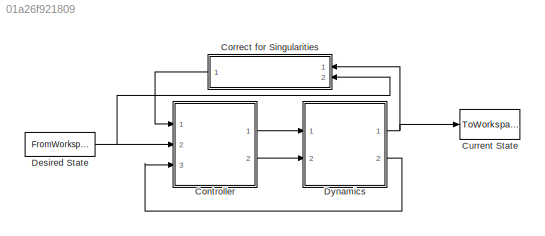
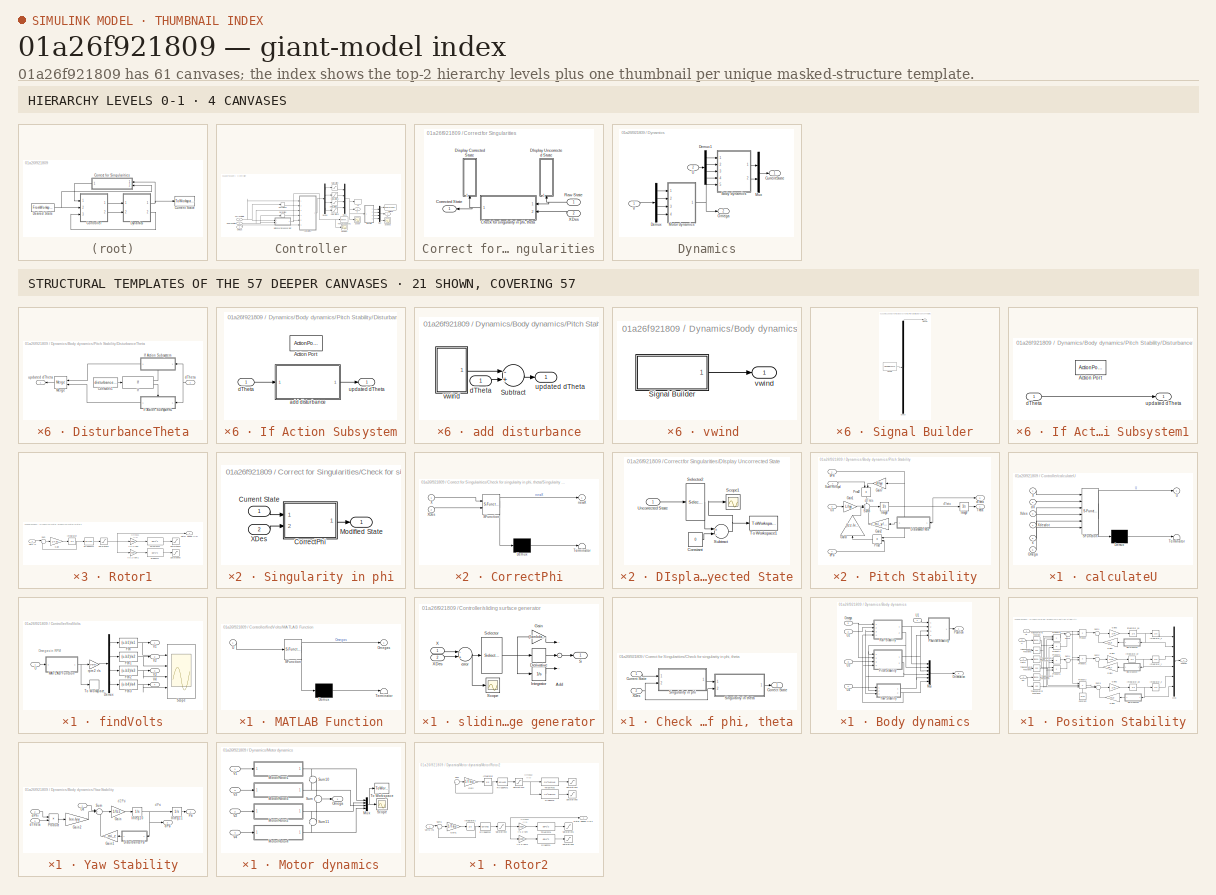
[diagram: thumbnail index - top-2 hierarchy levels (4 canvases) + 21 structural-template representatives of the remaining 57 canvases]
MODEL slx_01a26f921809
KIND model
CONFIG AbsTol = auto
CONFIG EnableMultiTasking = on
CONFIG FixedStep = auto
CONFIG MaxStep = auto
CONFIG MinStep = auto
CONFIG RelTol = 1e-3
CONFIG SampleTimeConstraint = Unconstrained
CONFIG Solver = ode45
CONFIG SolverName = ode45
CONFIG StartTime = 0.0
CONFIG StopTime = tSpan
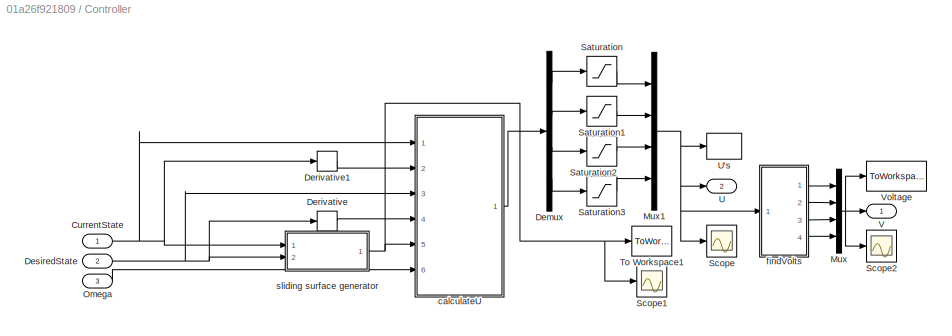
BLOCK [SubSystem] Controller
  Ports = [3, 2]
  RequestExecContextInheritance = off
BLOCK [Inport] Controller/CurrentState 
  IconDisplay = Port number
BLOCK [Demux] Controller/Demux
  DisplayOption = bar
  Ports = [1, 4]
BLOCK [Derivative] Controller/Derivative
BLOCK [Derivative] Controller/Derivative1
BLOCK [Inport] Controller/DesiredState
  IconDisplay = Port number
  Port = 2
BLOCK [Mux] Controller/Mux
  DisplayOption = bar
  Ports = [4, 1]
BLOCK [Mux] Controller/Mux1
  DisplayOption = bar
  Ports = [4, 1]
BLOCK [Inport] Controller/Omega
  IconDisplay = Port number
  Port = 3
BLOCK [Saturate] Controller/Saturation
  InputPortMap = u0
  LowerLimit = 0
  Ports = [1, 1]
  UpperLimit = 60
BLOCK [Saturate] Controller/Saturation1
  InputPortMap = u0
  LowerLimit = -angSatLimit
  Ports = [1, 1]
  UpperLimit = angSatLimit
BLOCK [Saturate] Controller/Saturation2
  InputPortMap = u0
  LowerLimit = -angSatLimit
  Ports = [1, 1]
  UpperLimit = angSatLimit
BLOCK [Saturate] Controller/Saturation3
  InputPortMap = u0
  LowerLimit = -angSatLimit
  Ports = [1, 1]
  UpperLimit = angSatLimit
BLOCK [Scope] Controller/Scope
  Floating = off
  NumInputPorts = 1
  Ports = [1]
  ScopeSpecificationString = Simulink.scopes.TimeScopeBlockCfg('CurrentConfiguration', extmgr.ConfigurationSet(extmgr.Configuration('Core','General UI',true),extmgr.Configuration('Core','Source UI',true),extmgr.Configuration('Sources','WiredSimulink',true,'DataLoggingVariableName','ScopeData3'),extmgr.Configuration('Visuals','Time Domain',true,'SerializedDisplays',{struct('MinYLimReal','-3565961127391.65869','MaxYLimReal','32...<+1647ch>
BLOCK [Scope] Controller/Scope1
  Floating = off
  NumInputPorts = 1
  Ports = [1]
  ScopeSpecificationString = Simulink.scopes.TimeScopeBlockCfg('CurrentConfiguration', extmgr.ConfigurationSet(extmgr.Configuration('Core','General UI',true),extmgr.Configuration('Core','Source UI',true),extmgr.Configuration('Sources','WiredSimulink',true,'DataLoggingVariableName','ScopeData4'),extmgr.Configuration('Visuals','Time Domain',true,'SerializedDisplays',{struct('MinYLimReal','-402.84597','MaxYLimReal','252.31441','...<+1488ch>
BLOCK [Scope] Controller/Scope2
  Floating = off
  NumInputPorts = 1
  Ports = [1]
  ScopeSpecificationString = Simulink.scopes.TimeScopeBlockCfg('CurrentConfiguration', extmgr.ConfigurationSet(extmgr.Configuration('Core','General UI',true),extmgr.Configuration('Core','Source UI',true),extmgr.Configuration('Sources','WiredSimulink',true,'DataLoggingVariableName','ScopeData1'),extmgr.Configuration('Visuals','Time Domain',true,'SerializedDisplays',{struct('MinYLimReal','-23.01423','MaxYLimReal','207.4383','YL...<+1449ch>
BLOCK [ToWorkspace] Controller/To Workspace1
  FixptAsFi = on
  MaxDataPoints = inf
  Ports = [1]
  SampleTime = -1
  Save2DSignal = 3-D array (concatenate along third dimension)
  SaveFormat = Timeseries
  VariableName = sliding
BLOCK [Outport] Controller/U
  IconDisplay = Port number
  Port = 2
BLOCK [ToWorkspace] Controller/U's
  FixptAsFi = on
  MaxDataPoints = inf
  Ports = [1]
  SampleTime = -1
  Save2DSignal = 3-D array (concatenate along third dimension)
  SaveFormat = Timeseries
  VariableName = U_s
BLOCK [Outport] Controller/V
  IconDisplay = Port number
BLOCK [ToWorkspace] Controller/Voltage
  FixptAsFi = on
  MaxDataPoints = inf
  Ports = [1]
  SampleTime = -1
  Save2DSignal = 3-D array (concatenate along third dimension)
  SaveFormat = Timeseries
  VariableName = Vout
BLOCK [SubSystem] Controller/calculateU
  ErrorFcn = Stateflow.Translate.translate
  PermitHierarchicalResolution = ExplicitOnly
  Ports = [6, 1]
  RequestExecContextInheritance = off
  SFBlockType = MATLAB Function
  TreatAsAtomicUnit = on
BLOCK [Demux] Controller/calculateU/ Demux 
  Outputs = 1
  Ports = [1, 1]
BLOCK [S-Function] Controller/calculateU/ SFunction 
  EnableBusSupport = on
  FunctionName = sf_sfun
  PortCounts = [6 2]
  Ports = [6, 2]
  SFcnIsStateOwnerBlock = off
  SFunctionDeploymentMode = off
  Tag = Stateflow S-Function Quadrotor_model 1
BLOCK [Terminator] Controller/calculateU/ Terminator 
BLOCK [Inport] Controller/calculateU/Omega
  IconDisplay = Port number
  Port = 6
BLOCK [Outport] Controller/calculateU/U
  IconDisplay = Port number
BLOCK [Inport] Controller/calculateU/X
  IconDisplay = Port number
BLOCK [Inport] Controller/calculateU/Xdes
  IconDisplay = Port number
  Port = 3
BLOCK [Inport] Controller/calculateU/Xdesdot
  IconDisplay = Port number
  Port = 4
BLOCK [Inport] Controller/calculateU/dX
  IconDisplay = Port number
  Port = 2
BLOCK [Inport] Controller/calculateU/s
  IconDisplay = Port number
  Port = 5
BLOCK [SubSystem] Controller/findVolts
  Ports = [1, 4]
  RequestExecContextInheritance = off
BLOCK [Demux] Controller/findVolts/Demux
  DisplayOption = bar
  Ports = [1, 4]
BLOCK [Fcn] Controller/findVolts/Fcn
  Expr = (u-b1)/a1
BLOCK [Fcn] Controller/findVolts/Fcn1
  Expr = (u-b2)/a2
BLOCK [Fcn] Controller/findVolts/Fcn2
  Expr = (u-b3)/a3
BLOCK [Fcn] Controller/findVolts/Fcn3
  Expr = (u-b4)/a4
BLOCK [SubSystem] Controller/findVolts/MATLAB Function
  ErrorFcn = Stateflow.Translate.translate
  PermitHierarchicalResolution = ExplicitOnly
  Ports = [1, 1]
  RequestExecContextInheritance = off
  SFBlockType = MATLAB Function
  TreatAsAtomicUnit = on
BLOCK [Demux] Controller/findVolts/MATLAB Function/ Demux 
  Outputs = 1
  Ports = [1, 1]
BLOCK [S-Function] Controller/findVolts/MATLAB Function/ SFunction 
  EnableBusSupport = on
  FunctionName = sf_sfun
  PortCounts = [1 2]
  Ports = [1, 2]
  SFcnIsStateOwnerBlock = off
  SFunctionDeploymentMode = off
  Tag = Stateflow S-Function Quadrotor_model 5
BLOCK [Terminator] Controller/findVolts/MATLAB Function/ Terminator 
BLOCK [Outport] Controller/findVolts/MATLAB Function/Omegas
  IconDisplay = Port number
BLOCK [Inport] Controller/findVolts/MATLAB Function/U
  IconDisplay = Port number
BLOCK [Scope] Controller/findVolts/Scope
  Floating = off
  NumInputPorts = 4
  Ports = [4]
  ScopeSpecificationString = Simulink.scopes.TimeScopeBlockCfg('CurrentConfiguration', extmgr.ConfigurationSet(extmgr.Configuration('Core','General UI',true),extmgr.Configuration('Core','Source UI',true),extmgr.Configuration('Sources','WiredSimulink',true,'DataLoggingVariableName','ScopeData1'),extmgr.Configuration('Visuals','Time Domain',true,'SerializedDisplays',{struct('MinYLimReal','-23.01423','MaxYLimReal','207.4383','YL...<+1389ch>
BLOCK [ToWorkspace] Controller/findVolts/To Workspace
  FixptAsFi = on
  MaxDataPoints = inf
  Ports = [1]
  SampleTime = -1
  Save2DSignal = 3-D array (concatenate along third dimension)
  SaveFormat = Timeseries
  VariableName = om1
BLOCK [Inport] Controller/findVolts/U
  IconDisplay = Port number
BLOCK [Outport] Controller/findVolts/V1
  IconDisplay = Port number
BLOCK [Outport] Controller/findVolts/V2
  IconDisplay = Port number
  Port = 2
BLOCK [Outport] Controller/findVolts/V3
  IconDisplay = Port number
  Port = 3
BLOCK [Outport] Controller/findVolts/V4
  IconDisplay = Port number
  Port = 4
BLOCK [Gain] Controller/findVolts/rpm 2 r//s
  Gain = 2*pi/60
  OutDataTypeStr = Inherit: Inherit via internal rule
  ParamDataTypeStr = Inherit: Inherit via internal rule
  SaturateOnIntegerOverflow = off
BLOCK [SubSystem] Controller/sliding surface generator
  Ports = [2, 1]
  RequestExecContextInheritance = off
BLOCK [Sum] Controller/sliding surface generator/Add
  InputSameDT = off
  Inputs = +++
  OutDataTypeStr = Inherit: Inherit via internal rule
  Ports = [3, 1]
  SaturateOnIntegerOverflow = off
BLOCK [Derivative] Controller/sliding surface generator/Derivative
BLOCK [Gain] Controller/sliding surface generator/Gain
  Gain = [lambda_z lambda_phi lambda_theta lambda_psi].'
  OutDataTypeStr = Inherit: Inherit via internal rule
  ParamDataTypeStr = Inherit: Inherit via internal rule
  SaturateOnIntegerOverflow = off
BLOCK [Integrator] Controller/sliding surface generator/Integrator
  Ports = [1, 1]
BLOCK [Outport] Controller/sliding surface generator/S
  IconDisplay = Port number
BLOCK [Scope] Controller/sliding surface generator/Scope
  Floating = off
  NumInputPorts = 1
  Ports = [1]
  ScopeSpecificationString = Simulink.scopes.TimeScopeBlockCfg('CurrentConfiguration', extmgr.ConfigurationSet(extmgr.Configuration('Core','General UI',true),extmgr.Configuration('Core','Source UI',true),extmgr.Configuration('Sources','WiredSimulink',true,'DataLoggingVariableName','ScopeData1'),extmgr.Configuration('Visuals','Time Domain',true,'SerializedDisplays',{struct('MinYLimReal','-567.17898','MaxYLimReal','85.10398','Y...<+1838ch>
BLOCK [Selector] Controller/sliding surface generator/Selector
  IndexOptions = Index vector (dialog)
  Indices = [5 7 9 11]
  InputPortWidth = 12
  OutputSizes = 1
  Ports = [1, 1]
BLOCK [Inport] Controller/sliding surface generator/X
  IconDisplay = Port number
BLOCK [Inport] Controller/sliding surface generator/XDes
  IconDisplay = Port number
  Port = 2
BLOCK [Sum] Controller/sliding surface generator/error
  InputSameDT = off
  Inputs = -+
  OutDataTypeStr = Inherit: Inherit via internal rule
  Ports = [2, 1]
  SaturateOnIntegerOverflow = off
BLOCK [SubSystem] Correct for Singularities
  Ports = [2, 1]
  RequestExecContextInheritance = off
BLOCK [SubSystem] Correct for Singularities/Check for singularity in phi, theta
  Ports = [2, 1]
  RequestExecContextInheritance = off
BLOCK [Outport] Correct for Singularities/Check for singularity in phi, theta/Correct State 
  IconDisplay = Port number
BLOCK [Inport] Correct for Singularities/Check for singularity in phi, theta/Current State
  IconDisplay = Port number
BLOCK [SubSystem] Correct for Singularities/Check for singularity in phi, theta/Singularity in phi
  Ports = [2, 1]
  RequestExecContextInheritance = off
BLOCK [SubSystem] Correct for Singularities/Check for singularity in phi, theta/Singularity in phi/CorrectPhi
  ErrorFcn = Stateflow.Translate.translate
  PermitHierarchicalResolution = ExplicitOnly
  Ports = [2, 1]
  RequestExecContextInheritance = off
  SFBlockType = MATLAB Function
  TreatAsAtomicUnit = on
BLOCK [Demux] Correct for Singularities/Check for singularity in phi, theta/Singularity in phi/CorrectPhi/ Demux 
  Outputs = 1
  Ports = [1, 1]
BLOCK [S-Function] Correct for Singularities/Check for singularity in phi, theta/Singularity in phi/CorrectPhi/ SFunction 
  EnableBusSupport = on
  FunctionName = sf_sfun
  PortCounts = [2 2]
  Ports = [2, 2]
  SFcnIsStateOwnerBlock = off
  SFunctionDeploymentMode = off
  Tag = Stateflow S-Function Quadrotor_model 4
BLOCK [Terminator] Correct for Singularities/Check for singularity in phi, theta/Singularity in phi/CorrectPhi/ Terminator 
BLOCK [Inport] Correct for Singularities/Check for singularity in phi, theta/Singularity in phi/CorrectPhi/X
  IconDisplay = Port number
BLOCK [Inport] Correct for Singularities/Check for singularity in phi, theta/Singularity in phi/CorrectPhi/XDes
  IconDisplay = Port number
  Port = 2
BLOCK [Outport] Correct for Singularities/Check for singularity in phi, theta/Singularity in phi/CorrectPhi/newX
  IconDisplay = Port number
BLOCK [Inport] Correct for Singularities/Check for singularity in phi, theta/Singularity in phi/Current State
  IconDisplay = Port number
BLOCK [Outport] Correct for Singularities/Check for singularity in phi, theta/Singularity in phi/Modified State
  IconDisplay = Port number
BLOCK [Inport] Correct for Singularities/Check for singularity in phi, theta/Singularity in phi/XDes
  IconDisplay = Port number
  Port = 2
BLOCK [SubSystem] Correct for Singularities/Check for singularity in phi, theta/Singularity in theta
  Ports = [2, 1]
  RequestExecContextInheritance = off
BLOCK [SubSystem] Correct for Singularities/Check for singularity in phi, theta/Singularity in theta/CorrectTheta
  ErrorFcn = Stateflow.Translate.translate
  PermitHierarchicalResolution = ExplicitOnly
  Ports = [2, 1]
  RequestExecContextInheritance = off
  SFBlockType = MATLAB Function
  TreatAsAtomicUnit = on
BLOCK [Demux] Correct for Singularities/Check for singularity in phi, theta/Singularity in theta/CorrectTheta/ Demux 
  Outputs = 1
  Ports = [1, 1]
BLOCK [S-Function] Correct for Singularities/Check for singularity in phi, theta/Singularity in theta/CorrectTheta/ SFunction 
  EnableBusSupport = on
  FunctionName = sf_sfun
  PortCounts = [2 2]
  Ports = [2, 2]
  SFcnIsStateOwnerBlock = off
  SFunctionDeploymentMode = off
  Tag = Stateflow S-Function Quadrotor_model 6
BLOCK [Terminator] Correct for Singularities/Check for singularity in phi, theta/Singularity in theta/CorrectTheta/ Terminator 
BLOCK [Inport] Correct for Singularities/Check for singularity in phi, theta/Singularity in theta/CorrectTheta/X
  IconDisplay = Port number
BLOCK [Inport] Correct for Singularities/Check for singularity in phi, theta/Singularity in theta/CorrectTheta/XDes
  IconDisplay = Port number
  Port = 2
BLOCK [Outport] Correct for Singularities/Check for singularity in phi, theta/Singularity in theta/CorrectTheta/newX
  IconDisplay = Port number
BLOCK [Inport] Correct for Singularities/Check for singularity in phi, theta/Singularity in theta/Current State
  IconDisplay = Port number
BLOCK [Outport] Correct for Singularities/Check for singularity in phi, theta/Singularity in theta/Modified State
  IconDisplay = Port number
BLOCK [Inport] Correct for Singularities/Check for singularity in phi, theta/Singularity in theta/XDes
  IconDisplay = Port number
  Port = 2
BLOCK [Inport] Correct for Singularities/Check for singularity in phi, theta/XDes
  IconDisplay = Port number
  Port = 2
BLOCK [Outport] Correct for Singularities/Corrected State
  IconDisplay = Port number
BLOCK [SubSystem] Correct for Singularities/DIsplay Uncorrected State
  Ports = [1]
  RequestExecContextInheritance = off
BLOCK [Constant] Correct for Singularities/DIsplay Uncorrected State/Constant
  Value = 0
BLOCK [Scope] Correct for Singularities/DIsplay Uncorrected State/Scope1
  Floating = off
  NumInputPorts = 1
  Ports = [1]
  ScopeSpecificationString = Simulink.scopes.TimeScopeBlockCfg('CurrentConfiguration', extmgr.ConfigurationSet(extmgr.Configuration('Core','General UI',true),extmgr.Configuration('Core','Source UI',true),extmgr.Configuration('Sources','WiredSimulink',true,'DataLoggingVariableName','ScopeData2'),extmgr.Configuration('Visuals','Time Domain',true,'SerializedDisplays',{struct('MinYLimReal','-1.00000','MaxYLimReal','1.00000','YLab...<+1410ch>
BLOCK [Selector] Correct for Singularities/DIsplay Uncorrected State/Selector2
  IndexOptions = Index vector (dialog)
  Indices = [7 9]
  InputPortWidth = 12
  OutputSizes = 1
  Ports = [1, 1]
BLOCK [Sum] Correct for Singularities/DIsplay Uncorrected State/Subtract
  InputSameDT = off
  Inputs = +-
  OutDataTypeStr = Inherit: Inherit via internal rule
  Ports = [2, 1]
  SaturateOnIntegerOverflow = off
BLOCK [ToWorkspace] Correct for Singularities/DIsplay Uncorrected State/To Workspace1
  FixptAsFi = on
  MaxDataPoints = inf
  Ports = [1]
  SampleTime = -1
  Save2DSignal = 3-D array (concatenate along third dimension)
  SaveFormat = Timeseries
  VariableName = rawAngles
BLOCK [Inport] Correct for Singularities/DIsplay Uncorrected State/Uncorrected State
  IconDisplay = Port number
BLOCK [SubSystem] Correct for Singularities/Display Corrected State
  Ports = [1]
  RequestExecContextInheritance = off
BLOCK [Constant] Correct for Singularities/Display Corrected State/Constant1
  Value = 0
BLOCK [Inport] Correct for Singularities/Display Corrected State/Corrected State
  IconDisplay = Port number
BLOCK [Scope] Correct for Singularities/Display Corrected State/Scope2
  Floating = off
  NumInputPorts = 1
  Ports = [1]
  ScopeSpecificationString = Simulink.scopes.TimeScopeBlockCfg('CurrentConfiguration', extmgr.ConfigurationSet(extmgr.Configuration('Core','General UI',true),extmgr.Configuration('Core','Source UI',true),extmgr.Configuration('Sources','WiredSimulink',true,'DataLoggingVariableName','ScopeData1'),extmgr.Configuration('Visuals','Time Domain',true,'SerializedDisplays',{struct('MinYLimReal','-1.60717','MaxYLimReal','5.12426','YLab...<+1412ch>
BLOCK [Selector] Correct for Singularities/Display Corrected State/Selector1
  IndexOptions = Index vector (dialog)
  Indices = [7 9]
  InputPortWidth = 12
  OutputSizes = 1
  Ports = [1, 1]
BLOCK [Sum] Correct for Singularities/Display Corrected State/Subtract1
  InputSameDT = off
  Inputs = +-
  OutDataTypeStr = Inherit: Inherit via internal rule
  Ports = [2, 1]
  SaturateOnIntegerOverflow = off
BLOCK [ToWorkspace] Correct for Singularities/Display Corrected State/To Workspace
  FixptAsFi = on
  MaxDataPoints = inf
  Ports = [1]
  SampleTime = -1
  Save2DSignal = 3-D array (concatenate along third dimension)
  SaveFormat = Timeseries
  VariableName = correctedAngles
BLOCK [Inport] Correct for Singularities/Raw State
  IconDisplay = Port number
BLOCK [Inport] Correct for Singularities/XDes
  IconDisplay = Port number
  Port = 2
BLOCK [ToWorkspace] Current State
  FixptAsFi = on
  MaxDataPoints = inf
  Ports = [1]
  SampleTime = -1
  Save2DSignal = 3-D array (concatenate along third dimension)
  SaveFormat = Timeseries
  VariableName = state
BLOCK [FromWorkspace] Desired State
  SampleTime = 0
  VariableName = XDes
  ZeroCross = on
BLOCK [SubSystem] Dynamics
  Ports = [2, 2]
  RequestExecContextInheritance = off
BLOCK [SubSystem] Dynamics/Body dynamics
  Ports = [5, 2]
  RequestExecContextInheritance = off
BLOCK [Mux] Dynamics/Body dynamics/Mux
  DisplayOption = bar
  Inputs = 6
  Ports = [6, 1]
BLOCK [Inport] Dynamics/Body dynamics/Omega
  IconDisplay = Port number
  Port = 5
BLOCK [Outport] Dynamics/Body dynamics/Orientation
  IconDisplay = Port number
  Port = 2
BLOCK [SubSystem] Dynamics/Body dynamics/Pitch Stability
  Ports = [4, 2]
  RequestExecContextInheritance = off
BLOCK [SubSystem] Dynamics/Body dynamics/Pitch Stability/DisturbanceTheta
  Ports = [1, 1]
  RequestExecContextInheritance = off
BLOCK [Constant] Dynamics/Body dynamics/Pitch Stability/DisturbanceTheta/Constant1
  Value = disturbanceTheta
BLOCK [If] Dynamics/Body dynamics/Pitch Stability/DisturbanceTheta/If
  IfExpression = u1 == 1
  Ports = [1, 2]
BLOCK [SubSystem] Dynamics/Body dynamics/Pitch Stability/DisturbanceTheta/If Action Subsystem
  Ports = [1, 1, 0, 0, 0, 0, 0, 1]
  RequestExecContextInheritance = off
  TreatAsAtomicUnit = on
BLOCK [ActionPort] Dynamics/Body dynamics/Pitch Stability/DisturbanceTheta/If Action Subsystem/Action Port
  ActionType = then
BLOCK [SubSystem] Dynamics/Body dynamics/Pitch Stability/DisturbanceTheta/If Action Subsystem/add disturbance
  Ports = [1, 1]
  RequestExecContextInheritance = off
BLOCK [Sum] Dynamics/Body dynamics/Pitch Stability/DisturbanceTheta/If Action Subsystem/add disturbance/Subtract
  InputSameDT = off
  Inputs = -+
  OutDataTypeStr = Inherit: Inherit via internal rule
  Ports = [2, 1]
  SaturateOnIntegerOverflow = off
BLOCK [Inport] Dynamics/Body dynamics/Pitch Stability/DisturbanceTheta/If Action Subsystem/add disturbance/dTheta
  IconDisplay = Port number
BLOCK [Outport] Dynamics/Body dynamics/Pitch Stability/DisturbanceTheta/If Action Subsystem/add disturbance/updated dTheta
  IconDisplay = Port number
BLOCK [SubSystem] Dynamics/Body dynamics/Pitch Stability/DisturbanceTheta/If Action Subsystem/add disturbance/vwind 
  Ports = [0, 1]
  RequestExecContextInheritance = off
BLOCK [SubSystem] Dynamics/Body dynamics/Pitch Stability/DisturbanceTheta/If Action Subsystem/add disturbance/vwind /Signal Builder
  ClipboardFcn = sigbuilder_block('clipboard');
  CloseFcn = sigbuilder_block('close');
  ContinueFcn = sigbuilder_block('continue');
  CopyFcn = sigbuilder_block('copy');
  DeleteFcn = sigbuilder_block('delete');
  LoadFcn = sigbuilder_block('load');
  MaskHideContents = on
  ModelCloseFcn = sigbuilder_block('modelClose');
  NameChangeFcn = sigbuilder_block('namechange');
  OpenFcn = sigbuilder_block('open',[437.6 199.2 550.4 400 ]);
  PauseFcn = sigbuilder_block('pause');
  Ports = [0, 1]
  PreSaveFcn = sigbuilder_block('preSave');
  RequestExecContextInheritance = off
  StartFcn = sigbuilder_block('start');
  StopFcn = sigbuilder_block('stop');
  Tag = STV Subsys
BLOCK [Demux] Dynamics/Body dynamics/Pitch Stability/DisturbanceTheta/If Action Subsystem/add disturbance/vwind /Signal Builder/Demux
  Outputs = 1
  Ports = [1, 1]
  Tag = STV Demux
BLOCK [FromWorkspace] Dynamics/Body dynamics/Pitch Stability/DisturbanceTheta/If Action Subsystem/add disturbance/vwind /Signal Builder/FromWs
  SampleTime = 0
  Tag = STV FromWs
  VariableName = tuvar
  ZeroCross = on
BLOCK [Outport] Dynamics/Body dynamics/Pitch Stability/DisturbanceTheta/If Action Subsystem/add disturbance/vwind /Signal Builder/Signal 2
  IconDisplay = Port number
  Tag = STV Outport
BLOCK [Outport] Dynamics/Body dynamics/Pitch Stability/DisturbanceTheta/If Action Subsystem/add disturbance/vwind /vwind
  IconDisplay = Port number
BLOCK [Inport] Dynamics/Body dynamics/Pitch Stability/DisturbanceTheta/If Action Subsystem/dTheta
  IconDisplay = Port number
BLOCK [Outport] Dynamics/Body dynamics/Pitch Stability/DisturbanceTheta/If Action Subsystem/updated dTheta
  IconDisplay = Port number
BLOCK [SubSystem] Dynamics/Body dynamics/Pitch Stability/DisturbanceTheta/If Action Subsystem1
  Ports = [1, 1, 0, 0, 0, 0, 0, 1]
  RequestExecContextInheritance = off
  TreatAsAtomicUnit = on
BLOCK [ActionPort] Dynamics/Body dynamics/Pitch Stability/DisturbanceTheta/If Action Subsystem1/Action Port
  ActionType = else
BLOCK [Inport] Dynamics/Body dynamics/Pitch Stability/DisturbanceTheta/If Action Subsystem1/dTheta
  IconDisplay = Port number
BLOCK [Outport] Dynamics/Body dynamics/Pitch Stability/DisturbanceTheta/If Action Subsystem1/updated dTheta
  IconDisplay = Port number
BLOCK [Merge] Dynamics/Body dynamics/Pitch Stability/DisturbanceTheta/Merge
  Ports = [2, 1]
BLOCK [Inport] Dynamics/Body dynamics/Pitch Stability/DisturbanceTheta/dTheta
  IconDisplay = Port number
BLOCK [Outport] Dynamics/Body dynamics/Pitch Stability/DisturbanceTheta/updated dTheta
  IconDisplay = Port number
BLOCK [Gain] Dynamics/Body dynamics/Pitch Stability/Gain1
  Gain = L/Iyy
  OutDataTypeStr = Inherit: Inherit via internal rule
  ParamDataTypeStr = Inherit: Inherit via internal rule
  SaturateOnIntegerOverflow = off
BLOCK [Gain] Dynamics/Body dynamics/Pitch Stability/Gain2
  Gain = c_mi_y/Iyy
  OutDataTypeStr = Inherit: Inherit via internal rule
  ParamDataTypeStr = Inherit: Inherit via internal rule
  SaturateOnIntegerOverflow = off
BLOCK [Gain] Dynamics/Body dynamics/Pitch Stability/Gain3
  Gain = (Izz-Ixx)/Iyy
  OutDataTypeStr = Inherit: Inherit via internal rule
  ParamDataTypeStr = Inherit: Inherit via internal rule
  SaturateOnIntegerOverflow = off
BLOCK [Gain] Dynamics/Body dynamics/Pitch Stability/Gain7
  Gain = Jr/Iyy
  OutDataTypeStr = Inherit: Inherit via internal rule
  ParamDataTypeStr = Inherit: Inherit via internal rule
  SaturateOnIntegerOverflow = off
BLOCK [Integrator] Dynamics/Body dynamics/Pitch Stability/Integ8
  InitialCondition = dtheta_0
  Ports = [1, 1]
BLOCK [Integrator] Dynamics/Body dynamics/Pitch Stability/Integ9
  InitialCondition = theta_0
  LowerSaturationLimit = -pi/2
  Ports = [1, 1]
  UpperSaturationLimit = pi/2
BLOCK [Product] Dynamics/Body dynamics/Pitch Stability/Prod
  InputSameDT = off
  OutDataTypeStr = Inherit: Inherit via internal rule
  Ports = [2, 1]
  SaturateOnIntegerOverflow = off
BLOCK [Product] Dynamics/Body dynamics/Pitch Stability/Prod2
  InputSameDT = off
  OutDataTypeStr = Inherit: Inherit via internal rule
  Ports = [2, 1]
  SaturateOnIntegerOverflow = off
BLOCK [Sum] Dynamics/Body dynamics/Pitch Stability/Sum8
  IconShape = round
  InputSameDT = off
  Inputs = +++-
  OutDataTypeStr = Inherit: Inherit via internal rule
  Ports = [4, 1]
  SaturateOnIntegerOverflow = off
BLOCK [Inport] Dynamics/Body dynamics/Pitch Stability/SumYRtrSpd
  IconDisplay = Port number
  Port = 2
BLOCK [Outport] Dynamics/Body dynamics/Pitch Stability/Theta
  IconDisplay = Port number
BLOCK [Inport] Dynamics/Body dynamics/Pitch Stability/U3
  IconDisplay = Port number
  Port = 3
BLOCK [Inport] Dynamics/Body dynamics/Pitch Stability/dPhi
  IconDisplay = Port number
BLOCK [Inport] Dynamics/Body dynamics/Pitch Stability/dPsi
  IconDisplay = Port number
  Port = 4
BLOCK [Outport] Dynamics/Body dynamics/Pitch Stability/dTheta
  IconDisplay = Port number
  Port = 2
BLOCK [Outport] Dynamics/Body dynamics/Position
  IconDisplay = Port number
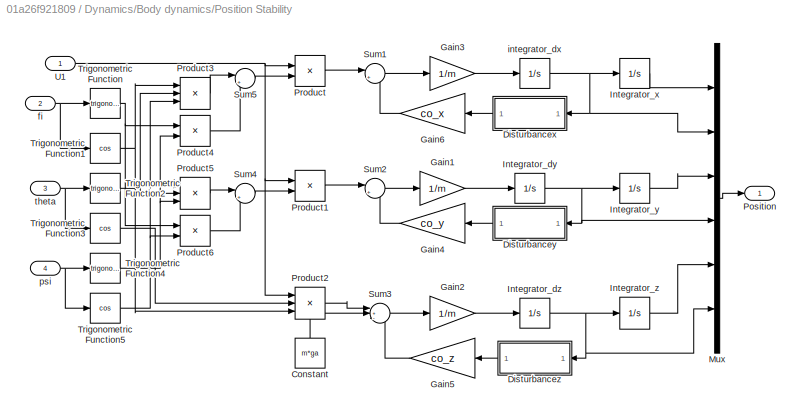
BLOCK [SubSystem] Dynamics/Body dynamics/Position Stability
  Ports = [4, 1]
  RequestExecContextInheritance = off
BLOCK [Constant] Dynamics/Body dynamics/Position Stability/Constant
  Value = m*ga
BLOCK [SubSystem] Dynamics/Body dynamics/Position Stability/Disturbancex
  Ports = [1, 1]
  RequestExecContextInheritance = off
BLOCK [Constant] Dynamics/Body dynamics/Position Stability/Disturbancex/Constant1
  Value = disturbancex
BLOCK [If] Dynamics/Body dynamics/Position Stability/Disturbancex/If
  IfExpression = u1 == 1
  Ports = [1, 2]
BLOCK [SubSystem] Dynamics/Body dynamics/Position Stability/Disturbancex/If Action Subsystem
  Ports = [1, 1, 0, 0, 0, 0, 0, 1]
  RequestExecContextInheritance = off
  TreatAsAtomicUnit = on
BLOCK [ActionPort] Dynamics/Body dynamics/Position Stability/Disturbancex/If Action Subsystem/Action Port
  ActionType = then
BLOCK [SubSystem] Dynamics/Body dynamics/Position Stability/Disturbancex/If Action Subsystem/add disturbance
  Ports = [1, 1]
  RequestExecContextInheritance = off
BLOCK [Sum] Dynamics/Body dynamics/Position Stability/Disturbancex/If Action Subsystem/add disturbance/Subtract
  InputSameDT = off
  Inputs = -+
  OutDataTypeStr = Inherit: Inherit via internal rule
  Ports = [2, 1]
  SaturateOnIntegerOverflow = off
BLOCK [Inport] Dynamics/Body dynamics/Position Stability/Disturbancex/If Action Subsystem/add disturbance/dx
  IconDisplay = Port number
BLOCK [Outport] Dynamics/Body dynamics/Position Stability/Disturbancex/If Action Subsystem/add disturbance/updated dx
  IconDisplay = Port number
BLOCK [SubSystem] Dynamics/Body dynamics/Position Stability/Disturbancex/If Action Subsystem/add disturbance/vwind 
  Ports = [0, 1]
  RequestExecContextInheritance = off
BLOCK [SubSystem] Dynamics/Body dynamics/Position Stability/Disturbancex/If Action Subsystem/add disturbance/vwind /Signal Builder
  ClipboardFcn = sigbuilder_block('clipboard');
  CloseFcn = sigbuilder_block('close');
  ContinueFcn = sigbuilder_block('continue');
  CopyFcn = sigbuilder_block('copy');
  DeleteFcn = sigbuilder_block('delete');
  LoadFcn = sigbuilder_block('load');
  MaskHideContents = on
  ModelCloseFcn = sigbuilder_block('modelClose');
  NameChangeFcn = sigbuilder_block('namechange');
  OpenFcn = sigbuilder_block('open',[394.2 102 550.8 400.2 ]);
  PauseFcn = sigbuilder_block('pause');
  Ports = [0, 1]
  PreSaveFcn = sigbuilder_block('preSave');
  RequestExecContextInheritance = off
  StartFcn = sigbuilder_block('start');
  StopFcn = sigbuilder_block('stop');
  Tag = STV Subsys
BLOCK [Demux] Dynamics/Body dynamics/Position Stability/Disturbancex/If Action Subsystem/add disturbance/vwind /Signal Builder/Demux
  Outputs = 1
  Ports = [1, 1]
  Tag = STV Demux
BLOCK [FromWorkspace] Dynamics/Body dynamics/Position Stability/Disturbancex/If Action Subsystem/add disturbance/vwind /Signal Builder/FromWs
  SampleTime = 0
  Tag = STV FromWs
  VariableName = tuvar
  ZeroCross = on
BLOCK [Outport] Dynamics/Body dynamics/Position Stability/Disturbancex/If Action Subsystem/add disturbance/vwind /Signal Builder/Signal 1
  IconDisplay = Port number
  Tag = STV Outport
BLOCK [Outport] Dynamics/Body dynamics/Position Stability/Disturbancex/If Action Subsystem/add disturbance/vwind /vwind
  IconDisplay = Port number
BLOCK [Inport] Dynamics/Body dynamics/Position Stability/Disturbancex/If Action Subsystem/dx
  IconDisplay = Port number
BLOCK [Outport] Dynamics/Body dynamics/Position Stability/Disturbancex/If Action Subsystem/updated dx
  IconDisplay = Port number
BLOCK [SubSystem] Dynamics/Body dynamics/Position Stability/Disturbancex/If Action Subsystem1
  Ports = [1, 1, 0, 0, 0, 0, 0, 1]
  RequestExecContextInheritance = off
  TreatAsAtomicUnit = on
BLOCK [ActionPort] Dynamics/Body dynamics/Position Stability/Disturbancex/If Action Subsystem1/Action Port
  ActionType = else
BLOCK [Inport] Dynamics/Body dynamics/Position Stability/Disturbancex/If Action Subsystem1/dx
  IconDisplay = Port number
BLOCK [Outport] Dynamics/Body dynamics/Position Stability/Disturbancex/If Action Subsystem1/updated dx
  IconDisplay = Port number
BLOCK [Merge] Dynamics/Body dynamics/Position Stability/Disturbancex/Merge
  Ports = [2, 1]
BLOCK [Inport] Dynamics/Body dynamics/Position Stability/Disturbancex/dx
  IconDisplay = Port number
BLOCK [Outport] Dynamics/Body dynamics/Position Stability/Disturbancex/updated dx
  IconDisplay = Port number
BLOCK [SubSystem] Dynamics/Body dynamics/Position Stability/Disturbancey
  Ports = [1, 1]
  RequestExecContextInheritance = off
BLOCK [Constant] Dynamics/Body dynamics/Position Stability/Disturbancey/Constant1
  Value = disturbancey
BLOCK [If] Dynamics/Body dynamics/Position Stability/Disturbancey/If
  IfExpression = u1 == 1
  Ports = [1, 2]
BLOCK [SubSystem] Dynamics/Body dynamics/Position Stability/Disturbancey/If Action Subsystem
  Ports = [1, 1, 0, 0, 0, 0, 0, 1]
  RequestExecContextInheritance = off
  TreatAsAtomicUnit = on
BLOCK [ActionPort] Dynamics/Body dynamics/Position Stability/Disturbancey/If Action Subsystem/Action Port
  ActionType = then
BLOCK [SubSystem] Dynamics/Body dynamics/Position Stability/Disturbancey/If Action Subsystem/add disturbance
  Ports = [1, 1]
  RequestExecContextInheritance = off
BLOCK [Sum] Dynamics/Body dynamics/Position Stability/Disturbancey/If Action Subsystem/add disturbance/Subtract
  InputSameDT = off
  Inputs = -+
  OutDataTypeStr = Inherit: Inherit via internal rule
  Ports = [2, 1]
  SaturateOnIntegerOverflow = off
BLOCK [Inport] Dynamics/Body dynamics/Position Stability/Disturbancey/If Action Subsystem/add disturbance/dy
  IconDisplay = Port number
BLOCK [Outport] Dynamics/Body dynamics/Position Stability/Disturbancey/If Action Subsystem/add disturbance/updated dy
  IconDisplay = Port number
BLOCK [SubSystem] Dynamics/Body dynamics/Position Stability/Disturbancey/If Action Subsystem/add disturbance/vwind 
  Ports = [0, 1]
  RequestExecContextInheritance = off
BLOCK [SubSystem] Dynamics/Body dynamics/Position Stability/Disturbancey/If Action Subsystem/add disturbance/vwind /Signal Builder
  ClipboardFcn = sigbuilder_block('clipboard');
  CloseFcn = sigbuilder_block('close');
  ContinueFcn = sigbuilder_block('continue');
  CopyFcn = sigbuilder_block('copy');
  DeleteFcn = sigbuilder_block('delete');
  LoadFcn = sigbuilder_block('load');
  MaskHideContents = on
  ModelCloseFcn = sigbuilder_block('modelClose');
  NameChangeFcn = sigbuilder_block('namechange');
  OpenFcn = sigbuilder_block('open',[394.2 102 550.8 400.2 ]);
  PauseFcn = sigbuilder_block('pause');
  Ports = [0, 1]
  PreSaveFcn = sigbuilder_block('preSave');
  RequestExecContextInheritance = off
  StartFcn = sigbuilder_block('start');
  StopFcn = sigbuilder_block('stop');
  Tag = STV Subsys
BLOCK [Demux] Dynamics/Body dynamics/Position Stability/Disturbancey/If Action Subsystem/add disturbance/vwind /Signal Builder/Demux
  Outputs = 1
  Ports = [1, 1]
  Tag = STV Demux
BLOCK [FromWorkspace] Dynamics/Body dynamics/Position Stability/Disturbancey/If Action Subsystem/add disturbance/vwind /Signal Builder/FromWs
  SampleTime = 0
  Tag = STV FromWs
  VariableName = tuvar
  ZeroCross = on
BLOCK [Outport] Dynamics/Body dynamics/Position Stability/Disturbancey/If Action Subsystem/add disturbance/vwind /Signal Builder/Signal 1
  IconDisplay = Port number
  Tag = STV Outport
BLOCK [Outport] Dynamics/Body dynamics/Position Stability/Disturbancey/If Action Subsystem/add disturbance/vwind /vwind
  IconDisplay = Port number
BLOCK [Inport] Dynamics/Body dynamics/Position Stability/Disturbancey/If Action Subsystem/dy
  IconDisplay = Port number
BLOCK [Outport] Dynamics/Body dynamics/Position Stability/Disturbancey/If Action Subsystem/updated dy
  IconDisplay = Port number
BLOCK [SubSystem] Dynamics/Body dynamics/Position Stability/Disturbancey/If Action Subsystem1
  Ports = [1, 1, 0, 0, 0, 0, 0, 1]
  RequestExecContextInheritance = off
  TreatAsAtomicUnit = on
BLOCK [ActionPort] Dynamics/Body dynamics/Position Stability/Disturbancey/If Action Subsystem1/Action Port
  ActionType = else
BLOCK [Inport] Dynamics/Body dynamics/Position Stability/Disturbancey/If Action Subsystem1/dy
  IconDisplay = Port number
BLOCK [Outport] Dynamics/Body dynamics/Position Stability/Disturbancey/If Action Subsystem1/updated dy
  IconDisplay = Port number
BLOCK [Merge] Dynamics/Body dynamics/Position Stability/Disturbancey/Merge
  Ports = [2, 1]
BLOCK [Inport] Dynamics/Body dynamics/Position Stability/Disturbancey/dy
  IconDisplay = Port number
BLOCK [Outport] Dynamics/Body dynamics/Position Stability/Disturbancey/updated dy
  IconDisplay = Port number
BLOCK [SubSystem] Dynamics/Body dynamics/Position Stability/Disturbancez
  Ports = [1, 1]
  RequestExecContextInheritance = off
BLOCK [Constant] Dynamics/Body dynamics/Position Stability/Disturbancez/Constant1
  Value = disturbancez
BLOCK [If] Dynamics/Body dynamics/Position Stability/Disturbancez/If
  IfExpression = u1 == 1
  Ports = [1, 2]
BLOCK [SubSystem] Dynamics/Body dynamics/Position Stability/Disturbancez/If Action Subsystem
  Ports = [1, 1, 0, 0, 0, 0, 0, 1]
  RequestExecContextInheritance = off
  TreatAsAtomicUnit = on
BLOCK [ActionPort] Dynamics/Body dynamics/Position Stability/Disturbancez/If Action Subsystem/Action Port
  ActionType = then
BLOCK [SubSystem] Dynamics/Body dynamics/Position Stability/Disturbancez/If Action Subsystem/add disturbance
  Ports = [1, 1]
  RequestExecContextInheritance = off
BLOCK [Sum] Dynamics/Body dynamics/Position Stability/Disturbancez/If Action Subsystem/add disturbance/Subtract
  InputSameDT = off
  Inputs = -+
  OutDataTypeStr = Inherit: Inherit via internal rule
  Ports = [2, 1]
  SaturateOnIntegerOverflow = off
BLOCK [Inport] Dynamics/Body dynamics/Position Stability/Disturbancez/If Action Subsystem/add disturbance/dz
  IconDisplay = Port number
BLOCK [Outport] Dynamics/Body dynamics/Position Stability/Disturbancez/If Action Subsystem/add disturbance/updated dz
  IconDisplay = Port number
BLOCK [SubSystem] Dynamics/Body dynamics/Position Stability/Disturbancez/If Action Subsystem/add disturbance/vwind 
  Ports = [0, 1]
  RequestExecContextInheritance = off
BLOCK [SubSystem] Dynamics/Body dynamics/Position Stability/Disturbancez/If Action Subsystem/add disturbance/vwind /Signal Builder
  ClipboardFcn = sigbuilder_block('clipboard');
  CloseFcn = sigbuilder_block('close');
  ContinueFcn = sigbuilder_block('continue');
  CopyFcn = sigbuilder_block('copy');
  DeleteFcn = sigbuilder_block('delete');
  LoadFcn = sigbuilder_block('load');
  MaskHideContents = on
  ModelCloseFcn = sigbuilder_block('modelClose');
  NameChangeFcn = sigbuilder_block('namechange');
  OpenFcn = sigbuilder_block('open',[295.2 65.4 595.2 493.8 ]);
  PauseFcn = sigbuilder_block('pause');
  Ports = [0, 1]
  PreSaveFcn = sigbuilder_block('preSave');
  RequestExecContextInheritance = off
  StartFcn = sigbuilder_block('start');
  StopFcn = sigbuilder_block('stop');
  Tag = STV Subsys
BLOCK [Demux] Dynamics/Body dynamics/Position Stability/Disturbancez/If Action Subsystem/add disturbance/vwind /Signal Builder/Demux
  Outputs = 1
  Ports = [1, 1]
  Tag = STV Demux
BLOCK [FromWorkspace] Dynamics/Body dynamics/Position Stability/Disturbancez/If Action Subsystem/add disturbance/vwind /Signal Builder/FromWs
  SampleTime = 0
  Tag = STV FromWs
  VariableName = tuvar
  ZeroCross = on
BLOCK [Outport] Dynamics/Body dynamics/Position Stability/Disturbancez/If Action Subsystem/add disturbance/vwind /Signal Builder/Signal 2
  IconDisplay = Port number
  Tag = STV Outport
BLOCK [Outport] Dynamics/Body dynamics/Position Stability/Disturbancez/If Action Subsystem/add disturbance/vwind /vwind
  IconDisplay = Port number
BLOCK [Inport] Dynamics/Body dynamics/Position Stability/Disturbancez/If Action Subsystem/dz
  IconDisplay = Port number
BLOCK [Outport] Dynamics/Body dynamics/Position Stability/Disturbancez/If Action Subsystem/updated dz
  IconDisplay = Port number
BLOCK [SubSystem] Dynamics/Body dynamics/Position Stability/Disturbancez/If Action Subsystem1
  Ports = [1, 1, 0, 0, 0, 0, 0, 1]
  RequestExecContextInheritance = off
  TreatAsAtomicUnit = on
BLOCK [ActionPort] Dynamics/Body dynamics/Position Stability/Disturbancez/If Action Subsystem1/Action Port
  ActionType = else
BLOCK [Inport] Dynamics/Body dynamics/Position Stability/Disturbancez/If Action Subsystem1/dz
  IconDisplay = Port number
BLOCK [Outport] Dynamics/Body dynamics/Position Stability/Disturbancez/If Action Subsystem1/updated dz
  IconDisplay = Port number
BLOCK [Merge] Dynamics/Body dynamics/Position Stability/Disturbancez/Merge
  Ports = [2, 1]
BLOCK [Inport] Dynamics/Body dynamics/Position Stability/Disturbancez/dz
  IconDisplay = Port number
BLOCK [Outport] Dynamics/Body dynamics/Position Stability/Disturbancez/updated dz
  IconDisplay = Port number
BLOCK [Gain] Dynamics/Body dynamics/Position Stability/Gain1
  Gain = 1/m
  OutDataTypeStr = Inherit: Inherit via internal rule
  ParamDataTypeStr = Inherit: Inherit via internal rule
  SaturateOnIntegerOverflow = off
BLOCK [Gain] Dynamics/Body dynamics/Position Stability/Gain2
  Gain = 1/m
  OutDataTypeStr = Inherit: Inherit via internal rule
  ParamDataTypeStr = Inherit: Inherit via internal rule
  SaturateOnIntegerOverflow = off
BLOCK [Gain] Dynamics/Body dynamics/Position Stability/Gain3
  Gain = 1/m
  OutDataTypeStr = Inherit: Inherit via internal rule
  ParamDataTypeStr = Inherit: Inherit via internal rule
  SaturateOnIntegerOverflow = off
BLOCK [Gain] Dynamics/Body dynamics/Position Stability/Gain4
  Gain = co_y
  OutDataTypeStr = Inherit: Inherit via internal rule
  ParamDataTypeStr = Inherit: Inherit via internal rule
  SaturateOnIntegerOverflow = off
BLOCK [Gain] Dynamics/Body dynamics/Position Stability/Gain5
  Gain = co_z
  OutDataTypeStr = Inherit: Inherit via internal rule
  ParamDataTypeStr = Inherit: Inherit via internal rule
  SaturateOnIntegerOverflow = off
BLOCK [Gain] Dynamics/Body dynamics/Position Stability/Gain6
  Gain = co_x
  OutDataTypeStr = Inherit: Inherit via internal rule
  ParamDataTypeStr = Inherit: Inherit via internal rule
  SaturateOnIntegerOverflow = off
BLOCK [Integrator] Dynamics/Body dynamics/Position Stability/Integrator_dy
  InitialCondition = dy_0
  LimitOutput = on
  LowerSaturationLimit = -1000
  Ports = [1, 1]
  UpperSaturationLimit = 1000
BLOCK [Integrator] Dynamics/Body dynamics/Position Stability/Integrator_dz
  InitialCondition = dz_0
  LimitOutput = on
  LowerSaturationLimit = -1000
  Ports = [1, 1]
  UpperSaturationLimit = 1000
BLOCK [Integrator] Dynamics/Body dynamics/Position Stability/Integrator_x
  InitialCondition = x_0
  Ports = [1, 1]
BLOCK [Integrator] Dynamics/Body dynamics/Position Stability/Integrator_y
  InitialCondition = y_0
  Ports = [1, 1]
BLOCK [Integrator] Dynamics/Body dynamics/Position Stability/Integrator_z
  InitialCondition = z_0
  Ports = [1, 1]
BLOCK [Mux] Dynamics/Body dynamics/Position Stability/Mux
  DisplayOption = bar
  Inputs = 6
  Ports = [6, 1]
BLOCK [Outport] Dynamics/Body dynamics/Position Stability/Position
  IconDisplay = Port number
BLOCK [Product] Dynamics/Body dynamics/Position Stability/Product
  InputSameDT = off
  OutDataTypeStr = Inherit: Inherit via internal rule
  Ports = [2, 1]
  SaturateOnIntegerOverflow = off
BLOCK [Product] Dynamics/Body dynamics/Position Stability/Product1
  InputSameDT = off
  OutDataTypeStr = Inherit: Inherit via internal rule
  Ports = [2, 1]
  SaturateOnIntegerOverflow = off
BLOCK [Product] Dynamics/Body dynamics/Position Stability/Product2
  InputSameDT = off
  Inputs = 3
  OutDataTypeStr = Inherit: Inherit via internal rule
  Ports = [3, 1]
  SaturateOnIntegerOverflow = off
BLOCK [Product] Dynamics/Body dynamics/Position Stability/Product3
  InputSameDT = off
  Inputs = 3
  OutDataTypeStr = Inherit: Inherit via internal rule
  Ports = [3, 1]
  SaturateOnIntegerOverflow = off
BLOCK [Product] Dynamics/Body dynamics/Position Stability/Product4
  InputSameDT = off
  OutDataTypeStr = Inherit: Inherit via internal rule
  Ports = [2, 1]
  SaturateOnIntegerOverflow = off
BLOCK [Product] Dynamics/Body dynamics/Position Stability/Product5
  InputSameDT = off
  Inputs = 3
  OutDataTypeStr = Inherit: Inherit via internal rule
  Ports = [3, 1]
  SaturateOnIntegerOverflow = off
BLOCK [Product] Dynamics/Body dynamics/Position Stability/Product6
  InputSameDT = off
  OutDataTypeStr = Inherit: Inherit via internal rule
  Ports = [2, 1]
  SaturateOnIntegerOverflow = off
BLOCK [Sum] Dynamics/Body dynamics/Position Stability/Sum1
  IconShape = round
  InputSameDT = off
  Inputs = |+-
  OutDataTypeStr = Inherit: Inherit via internal rule
  Ports = [2, 1]
  SaturateOnIntegerOverflow = off
BLOCK [Sum] Dynamics/Body dynamics/Position Stability/Sum2
  IconShape = round
  InputSameDT = off
  Inputs = |+-
  OutDataTypeStr = Inherit: Inherit via internal rule
  Ports = [2, 1]
  SaturateOnIntegerOverflow = off
BLOCK [Sum] Dynamics/Body dynamics/Position Stability/Sum3
  IconShape = round
  InputSameDT = off
  Inputs = |+--
  OutDataTypeStr = Inherit: Inherit via internal rule
  Ports = [3, 1]
  SaturateOnIntegerOverflow = off
BLOCK [Sum] Dynamics/Body dynamics/Position Stability/Sum4
  IconShape = round
  InputSameDT = off
  Inputs = |+-
  OutDataTypeStr = Inherit: Inherit via internal rule
  Ports = [2, 1]
  SaturateOnIntegerOverflow = off
BLOCK [Sum] Dynamics/Body dynamics/Position Stability/Sum5
  IconShape = round
  InputSameDT = off
  Inputs = |++
  OutDataTypeStr = Inherit: Inherit via internal rule
  Ports = [2, 1]
  SaturateOnIntegerOverflow = off
BLOCK [Trigonometry] Dynamics/Body dynamics/Position Stability/Trigonometric Function
  Ports = [1, 1]
BLOCK [Trigonometry] Dynamics/Body dynamics/Position Stability/Trigonometric Function1
  Operator = cos
  Ports = [1, 1]
BLOCK [Trigonometry] Dynamics/Body dynamics/Position Stability/Trigonometric Function2
  Ports = [1, 1]
BLOCK [Trigonometry] Dynamics/Body dynamics/Position Stability/Trigonometric Function3
  Operator = cos
  Ports = [1, 1]
BLOCK [Trigonometry] Dynamics/Body dynamics/Position Stability/Trigonometric Function4
  Ports = [1, 1]
BLOCK [Trigonometry] Dynamics/Body dynamics/Position Stability/Trigonometric Function5
  Operator = cos
  Ports = [1, 1]
BLOCK [Inport] Dynamics/Body dynamics/Position Stability/U1
  IconDisplay = Port number
BLOCK [Inport] Dynamics/Body dynamics/Position Stability/fi
  IconDisplay = Port number
  Port = 2
BLOCK [Integrator] Dynamics/Body dynamics/Position Stability/integrator_dx
  InitialCondition = dx_0
  LimitOutput = on
  LowerSaturationLimit = -1000
  Ports = [1, 1]
  UpperSaturationLimit = 1000
BLOCK [Inport] Dynamics/Body dynamics/Position Stability/psi
  IconDisplay = Port number
  Port = 4
BLOCK [Inport] Dynamics/Body dynamics/Position Stability/theta
  IconDisplay = Port number
  Port = 3
BLOCK [SubSystem] Dynamics/Body dynamics/Roll Stability
  Ports = [4, 2]
  RequestExecContextInheritance = off
BLOCK [SubSystem] Dynamics/Body dynamics/Roll Stability/DisturbancePhi
  Ports = [1, 1]
  RequestExecContextInheritance = off
BLOCK [Constant] Dynamics/Body dynamics/Roll Stability/DisturbancePhi/Constant1
  Value = disturbancePhi
BLOCK [If] Dynamics/Body dynamics/Roll Stability/DisturbancePhi/If
  IfExpression = u1 == 1
  Ports = [1, 2]
BLOCK [SubSystem] Dynamics/Body dynamics/Roll Stability/DisturbancePhi/If Action Subsystem
  Ports = [1, 1, 0, 0, 0, 0, 0, 1]
  RequestExecContextInheritance = off
  TreatAsAtomicUnit = on
BLOCK [ActionPort] Dynamics/Body dynamics/Roll Stability/DisturbancePhi/If Action Subsystem/Action Port
  ActionType = then
BLOCK [SubSystem] Dynamics/Body dynamics/Roll Stability/DisturbancePhi/If Action Subsystem/add disturbance
  Ports = [1, 1]
  RequestExecContextInheritance = off
BLOCK [Sum] Dynamics/Body dynamics/Roll Stability/DisturbancePhi/If Action Subsystem/add disturbance/Subtract
  InputSameDT = off
  Inputs = -+
  OutDataTypeStr = Inherit: Inherit via internal rule
  Ports = [2, 1]
  SaturateOnIntegerOverflow = off
BLOCK [Inport] Dynamics/Body dynamics/Roll Stability/DisturbancePhi/If Action Subsystem/add disturbance/dPhi
  IconDisplay = Port number
BLOCK [Outport] Dynamics/Body dynamics/Roll Stability/DisturbancePhi/If Action Subsystem/add disturbance/updated dPhi
  IconDisplay = Port number
BLOCK [SubSystem] Dynamics/Body dynamics/Roll Stability/DisturbancePhi/If Action Subsystem/add disturbance/vwind 
  Ports = [0, 1]
  RequestExecContextInheritance = off
BLOCK [SubSystem] Dynamics/Body dynamics/Roll Stability/DisturbancePhi/If Action Subsystem/add disturbance/vwind /Signal Builder
  ClipboardFcn = sigbuilder_block('clipboard');
  CloseFcn = sigbuilder_block('close');
  ContinueFcn = sigbuilder_block('continue');
  CopyFcn = sigbuilder_block('copy');
  DeleteFcn = sigbuilder_block('delete');
  LoadFcn = sigbuilder_block('load');
  MaskHideContents = on
  ModelCloseFcn = sigbuilder_block('modelClose');
  NameChangeFcn = sigbuilder_block('namechange');
  OpenFcn = sigbuilder_block('open',[432 80.25 565.5 403.5 ]);
  PauseFcn = sigbuilder_block('pause');
  Ports = [0, 1]
  PreSaveFcn = sigbuilder_block('preSave');
  RequestExecContextInheritance = off
  StartFcn = sigbuilder_block('start');
  StopFcn = sigbuilder_block('stop');
  Tag = STV Subsys
BLOCK [Demux] Dynamics/Body dynamics/Roll Stability/DisturbancePhi/If Action Subsystem/add disturbance/vwind /Signal Builder/Demux
  Outputs = 1
  Ports = [1, 1]
  Tag = STV Demux
BLOCK [FromWorkspace] Dynamics/Body dynamics/Roll Stability/DisturbancePhi/If Action Subsystem/add disturbance/vwind /Signal Builder/FromWs
  SampleTime = 0
  Tag = STV FromWs
  VariableName = tuvar
  ZeroCross = on
BLOCK [Outport] Dynamics/Body dynamics/Roll Stability/DisturbancePhi/If Action Subsystem/add disturbance/vwind /Signal Builder/Signal 2
  IconDisplay = Port number
  Tag = STV Outport
BLOCK [Outport] Dynamics/Body dynamics/Roll Stability/DisturbancePhi/If Action Subsystem/add disturbance/vwind /vwind
  IconDisplay = Port number
BLOCK [Inport] Dynamics/Body dynamics/Roll Stability/DisturbancePhi/If Action Subsystem/dPhi
  IconDisplay = Port number
BLOCK [Outport] Dynamics/Body dynamics/Roll Stability/DisturbancePhi/If Action Subsystem/updated dPhi
  IconDisplay = Port number
BLOCK [SubSystem] Dynamics/Body dynamics/Roll Stability/DisturbancePhi/If Action Subsystem1
  Ports = [1, 1, 0, 0, 0, 0, 0, 1]
  RequestExecContextInheritance = off
  TreatAsAtomicUnit = on
BLOCK [ActionPort] Dynamics/Body dynamics/Roll Stability/DisturbancePhi/If Action Subsystem1/Action Port
  ActionType = else
BLOCK [Inport] Dynamics/Body dynamics/Roll Stability/DisturbancePhi/If Action Subsystem1/dPhi
  IconDisplay = Port number
BLOCK [Outport] Dynamics/Body dynamics/Roll Stability/DisturbancePhi/If Action Subsystem1/updated dPhi
  IconDisplay = Port number
BLOCK [Merge] Dynamics/Body dynamics/Roll Stability/DisturbancePhi/Merge
  Ports = [2, 1]
BLOCK [Inport] Dynamics/Body dynamics/Roll Stability/DisturbancePhi/dPhi
  IconDisplay = Port number
BLOCK [Outport] Dynamics/Body dynamics/Roll Stability/DisturbancePhi/updated dPhi
  IconDisplay = Port number
BLOCK [Gain] Dynamics/Body dynamics/Roll Stability/Gain1
  Gain = c_mi_x/Ixx
  OutDataTypeStr = Inherit: Inherit via internal rule
  ParamDataTypeStr = Inherit: Inherit via internal rule
  SaturateOnIntegerOverflow = off
BLOCK [Gain] Dynamics/Body dynamics/Roll Stability/Gain3
  Gain = (Iyy-Izz)/Ixx
  OutDataTypeStr = Inherit: Inherit via internal rule
  ParamDataTypeStr = Inherit: Inherit via internal rule
  SaturateOnIntegerOverflow = off
BLOCK [Gain] Dynamics/Body dynamics/Roll Stability/Gain5
  Gain = L/Ixx
  OutDataTypeStr = Inherit: Inherit via internal rule
  ParamDataTypeStr = Inherit: Inherit via internal rule
  SaturateOnIntegerOverflow = off
BLOCK [Gain] Dynamics/Body dynamics/Roll Stability/Gain8
  Gain = Jr/Ixx
  OutDataTypeStr = Inherit: Inherit via internal rule
  ParamDataTypeStr = Inherit: Inherit via internal rule
  SaturateOnIntegerOverflow = off
BLOCK [Outport] Dynamics/Body dynamics/Roll Stability/Phi
  IconDisplay = Port number
BLOCK [Product] Dynamics/Body dynamics/Roll Stability/Prod1
  InputSameDT = off
  OutDataTypeStr = Inherit: Inherit via internal rule
  Ports = [2, 1]
  SaturateOnIntegerOverflow = off
BLOCK [Product] Dynamics/Body dynamics/Roll Stability/Prod3
  InputSameDT = off
  OutDataTypeStr = Inherit: Inherit via internal rule
  Ports = [2, 1]
  SaturateOnIntegerOverflow = off
BLOCK [Sum] Dynamics/Body dynamics/Roll Stability/Sum9
  IconShape = round
  InputSameDT = off
  Inputs = -++-
  OutDataTypeStr = Inherit: Inherit via internal rule
  Ports = [4, 1]
  SaturateOnIntegerOverflow = off
BLOCK [Inport] Dynamics/Body dynamics/Roll Stability/SumXRtrSpd
  IconDisplay = Port number
BLOCK [Inport] Dynamics/Body dynamics/Roll Stability/U2
  IconDisplay = Port number
  Port = 2
BLOCK [Integrator] Dynamics/Body dynamics/Roll Stability/d2Phi
  InitialCondition = dfi_0
  Ports = [1, 1]
BLOCK [Outport] Dynamics/Body dynamics/Roll Stability/dPhi
  IconDisplay = Port number
  Port = 2
BLOCK [Integrator] Dynamics/Body dynamics/Roll Stability/dPhi1
  InitialCondition = fi_0
  LowerSaturationLimit = -pi/2
  Ports = [1, 1]
  UpperSaturationLimit = pi/2
BLOCK [Inport] Dynamics/Body dynamics/Roll Stability/dPsi
  IconDisplay = Port number
  Port = 4
BLOCK [Inport] Dynamics/Body dynamics/Roll Stability/dTheta
  IconDisplay = Port number
  Port = 3
BLOCK [Inport] Dynamics/Body dynamics/U1
  IconDisplay = Port number
BLOCK [Inport] Dynamics/Body dynamics/U2
  IconDisplay = Port number
  Port = 2
BLOCK [Inport] Dynamics/Body dynamics/U3
  IconDisplay = Port number
  Port = 3
BLOCK [Inport] Dynamics/Body dynamics/U4
  IconDisplay = Port number
  Port = 4
BLOCK [SubSystem] Dynamics/Body dynamics/Yaw Stability
  Ports = [3, 2]
  RequestExecContextInheritance = off
BLOCK [SubSystem] Dynamics/Body dynamics/Yaw Stability/DisturbancePsi
  Ports = [1, 1]
  RequestExecContextInheritance = off
BLOCK [Constant] Dynamics/Body dynamics/Yaw Stability/DisturbancePsi/Constant1
  Value = disturbancePsi
BLOCK [If] Dynamics/Body dynamics/Yaw Stability/DisturbancePsi/If
  IfExpression = u1 == 1
  Ports = [1, 2]
BLOCK [SubSystem] Dynamics/Body dynamics/Yaw Stability/DisturbancePsi/If Action Subsystem
  Ports = [1, 1, 0, 0, 0, 0, 0, 1]
  RequestExecContextInheritance = off
  TreatAsAtomicUnit = on
BLOCK [ActionPort] Dynamics/Body dynamics/Yaw Stability/DisturbancePsi/If Action Subsystem/Action Port
  ActionType = then
BLOCK [SubSystem] Dynamics/Body dynamics/Yaw Stability/DisturbancePsi/If Action Subsystem/add disturbance
  Ports = [1, 1]
  RequestExecContextInheritance = off
BLOCK [Sum] Dynamics/Body dynamics/Yaw Stability/DisturbancePsi/If Action Subsystem/add disturbance/Subtract
  InputSameDT = off
  Inputs = -+
  OutDataTypeStr = Inherit: Inherit via internal rule
  Ports = [2, 1]
  SaturateOnIntegerOverflow = off
BLOCK [Inport] Dynamics/Body dynamics/Yaw Stability/DisturbancePsi/If Action Subsystem/add disturbance/dPsi
  IconDisplay = Port number
BLOCK [Outport] Dynamics/Body dynamics/Yaw Stability/DisturbancePsi/If Action Subsystem/add disturbance/updated dPsi
  IconDisplay = Port number
BLOCK [SubSystem] Dynamics/Body dynamics/Yaw Stability/DisturbancePsi/If Action Subsystem/add disturbance/vwind 
  Ports = [0, 1]
  RequestExecContextInheritance = off
BLOCK [SubSystem] Dynamics/Body dynamics/Yaw Stability/DisturbancePsi/If Action Subsystem/add disturbance/vwind /Signal Builder
  ClipboardFcn = sigbuilder_block('clipboard');
  CloseFcn = sigbuilder_block('close');
  ContinueFcn = sigbuilder_block('continue');
  CopyFcn = sigbuilder_block('copy');
  DeleteFcn = sigbuilder_block('delete');
  LoadFcn = sigbuilder_block('load');
  MaskHideContents = on
  ModelCloseFcn = sigbuilder_block('modelClose');
  NameChangeFcn = sigbuilder_block('namechange');
  OpenFcn = sigbuilder_block('open',[437.6 199.2 550.4 400 ]);
  PauseFcn = sigbuilder_block('pause');
  Ports = [0, 1]
  PreSaveFcn = sigbuilder_block('preSave');
  RequestExecContextInheritance = off
  StartFcn = sigbuilder_block('start');
  StopFcn = sigbuilder_block('stop');
  Tag = STV Subsys
BLOCK [Demux] Dynamics/Body dynamics/Yaw Stability/DisturbancePsi/If Action Subsystem/add disturbance/vwind /Signal Builder/Demux
  Outputs = 1
  Ports = [1, 1]
  Tag = STV Demux
BLOCK [FromWorkspace] Dynamics/Body dynamics/Yaw Stability/DisturbancePsi/If Action Subsystem/add disturbance/vwind /Signal Builder/FromWs
  SampleTime = 0
  Tag = STV FromWs
  VariableName = tuvar
  ZeroCross = on
BLOCK [Outport] Dynamics/Body dynamics/Yaw Stability/DisturbancePsi/If Action Subsystem/add disturbance/vwind /Signal Builder/Signal 2
  IconDisplay = Port number
  Tag = STV Outport
BLOCK [Outport] Dynamics/Body dynamics/Yaw Stability/DisturbancePsi/If Action Subsystem/add disturbance/vwind /vwind
  IconDisplay = Port number
BLOCK [Inport] Dynamics/Body dynamics/Yaw Stability/DisturbancePsi/If Action Subsystem/dPsi
  IconDisplay = Port number
BLOCK [Outport] Dynamics/Body dynamics/Yaw Stability/DisturbancePsi/If Action Subsystem/updated dPsi
  IconDisplay = Port number
BLOCK [SubSystem] Dynamics/Body dynamics/Yaw Stability/DisturbancePsi/If Action Subsystem1
  Ports = [1, 1, 0, 0, 0, 0, 0, 1]
  RequestExecContextInheritance = off
  TreatAsAtomicUnit = on
BLOCK [ActionPort] Dynamics/Body dynamics/Yaw Stability/DisturbancePsi/If Action Subsystem1/Action Port
  ActionType = else
BLOCK [Inport] Dynamics/Body dynamics/Yaw Stability/DisturbancePsi/If Action Subsystem1/dPsi
  IconDisplay = Port number
BLOCK [Outport] Dynamics/Body dynamics/Yaw Stability/DisturbancePsi/If Action Subsystem1/updated dPsi
  IconDisplay = Port number
BLOCK [Merge] Dynamics/Body dynamics/Yaw Stability/DisturbancePsi/Merge
  Ports = [2, 1]
BLOCK [Inport] Dynamics/Body dynamics/Yaw Stability/DisturbancePsi/dPsi
  IconDisplay = Port number
BLOCK [Outport] Dynamics/Body dynamics/Yaw Stability/DisturbancePsi/updated dPsi
  IconDisplay = Port number
BLOCK [Gain] Dynamics/Body dynamics/Yaw Stability/Gain
  Gain = 1/Izz
  OutDataTypeStr = Inherit: Inherit via internal rule
  ParamDataTypeStr = Inherit: Inherit via internal rule
  SaturateOnIntegerOverflow = off
BLOCK [Gain] Dynamics/Body dynamics/Yaw Stability/Gain1
  Gain = c_mi_z
  OutDataTypeStr = Inherit: Inherit via internal rule
  ParamDataTypeStr = Inherit: Inherit via internal rule
  SaturateOnIntegerOverflow = off
BLOCK [Gain] Dynamics/Body dynamics/Yaw Stability/Gain2
  Gain = Ixx-Iyy
  OutDataTypeStr = Inherit: Inherit via internal rule
  ParamDataTypeStr = Inherit: Inherit via internal rule
  SaturateOnIntegerOverflow = off
BLOCK [Integrator] Dynamics/Body dynamics/Yaw Stability/Integ10
  InitialCondition = dpsi_0
  Ports = [1, 1]
BLOCK [Integrator] Dynamics/Body dynamics/Yaw Stability/Integ11
  InitialCondition = psi_0
  Ports = [1, 1]
BLOCK [Product] Dynamics/Body dynamics/Yaw Stability/Product
  InputSameDT = off
  OutDataTypeStr = Inherit: Inherit via internal rule
  Ports = [2, 1]
  SaturateOnIntegerOverflow = off
BLOCK [Outport] Dynamics/Body dynamics/Yaw Stability/Psi
  IconDisplay = Port number
BLOCK [Sum] Dynamics/Body dynamics/Yaw Stability/Sum
  IconShape = round
  InputSameDT = off
  Inputs = |++-
  OutDataTypeStr = Inherit: Inherit via internal rule
  Ports = [3, 1]
  SaturateOnIntegerOverflow = off
BLOCK [Inport] Dynamics/Body dynamics/Yaw Stability/U4
  IconDisplay = Port number
BLOCK [Inport] Dynamics/Body dynamics/Yaw Stability/dPhi
  IconDisplay = Port number
  Port = 2
BLOCK [Outport] Dynamics/Body dynamics/Yaw Stability/dPsi
  IconDisplay = Port number
  Port = 2
BLOCK [Inport] Dynamics/Body dynamics/Yaw Stability/dTheta
  IconDisplay = Port number
  Port = 3
BLOCK [Outport] Dynamics/CurrentState 
  IconDisplay = Port number
BLOCK [Demux] Dynamics/Demux
  DisplayOption = bar
  Ports = [1, 4]
BLOCK [Demux] Dynamics/Demux1
  DisplayOption = bar
  Ports = [1, 4]
BLOCK [SubSystem] Dynamics/Motor dynamics
  Ports = [4, 1]
  RequestExecContextInheritance = off
BLOCK [SubSystem] Dynamics/Motor dynamics/Motor//Rotor1
  Ports = [1, 1]
  RequestExecContextInheritance = off
BLOCK [Fcn] Dynamics/Motor dynamics/Motor//Rotor1/DragFcn1
  Commented = on
  Expr = dd*u^2
BLOCK [Gain] Dynamics/Motor dynamics/Motor//Rotor1/Gain
  Gain = 1/Tau
  OutDataTypeStr = Inherit: Inherit via internal rule
  ParamDataTypeStr = Inherit: Inherit via internal rule
  SaturateOnIntegerOverflow = off
BLOCK [Integrator] Dynamics/Motor dynamics/Motor//Rotor1/Integrator
  InitialCondition = d_omega_R10
  Ports = [1, 1]
BLOCK [Outport] Dynamics/Motor dynamics/Motor//Rotor1/Rotor Speed (r//s)
  IconDisplay = Port number
BLOCK [Fcn] Dynamics/Motor dynamics/Motor//Rotor1/RtrSpdFcn1
  Expr = a1*u+b1
BLOCK [Saturate] Dynamics/Motor dynamics/Motor//Rotor1/Saturation3
  Commented = on
  InputPortMap = u0
  LowerLimit = -1000
  Ports = [1, 1]
  UpperLimit = 1000
BLOCK [Saturate] Dynamics/Motor dynamics/Motor//Rotor1/Saturation4
  InputPortMap = u0
  LowerLimit = 0
  Ports = [1, 1]
  UpperLimit = 250
BLOCK [Saturate] Dynamics/Motor dynamics/Motor//Rotor1/Saturation8
  Commented = on
  InputPortMap = u0
  LowerLimit = -1000
  Ports = [1, 1]
  UpperLimit = 1000
BLOCK [Sum] Dynamics/Motor dynamics/Motor//Rotor1/Sum
  IconShape = round
  InputSameDT = off
  Inputs = |+-
  OutDataTypeStr = Inherit: Inherit via internal rule
  Ports = [2, 1]
  SaturateOnIntegerOverflow = off
BLOCK [Fcn] Dynamics/Motor dynamics/Motor//Rotor1/ThrustFcn1
  Commented = on
  Expr = bb*u^2
BLOCK [Inport] Dynamics/Motor dynamics/Motor//Rotor1/Volts In
  IconDisplay = Port number
BLOCK [Gain] Dynamics/Motor dynamics/Motor//Rotor1/r//s 2 rpm
  Commented = on
  Gain = 60/2/pi
  OutDataTypeStr = Inherit: Inherit via internal rule
  ParamDataTypeStr = Inherit: Inherit via internal rule
  SaturateOnIntegerOverflow = off
BLOCK [Gain] Dynamics/Motor dynamics/Motor//Rotor1/r//s 2 rpm1
  Commented = on
  Gain = 60/2/pi
  OutDataTypeStr = Inherit: Inherit via internal rule
  ParamDataTypeStr = Inherit: Inherit via internal rule
  SaturateOnIntegerOverflow = off
BLOCK [SubSystem] Dynamics/Motor dynamics/Motor//Rotor2
  Ports = [1, 1]
  RequestExecContextInheritance = off
BLOCK [Fcn] Dynamics/Motor dynamics/Motor//Rotor2/DragFcn1
  Commented = on
  Expr = dd*u^2
BLOCK [Fcn] Dynamics/Motor dynamics/Motor//Rotor2/DragFcn2
  Commented = through
  Expr = f*u^2+g*u+h
BLOCK [Gain] Dynamics/Motor dynamics/Motor//Rotor2/Gain
  Commented = through
  Gain = 1/Tau
  OutDataTypeStr = Inherit: Inherit via internal rule
  ParamDataTypeStr = Inherit: Inherit via internal rule
  SaturateOnIntegerOverflow = off
BLOCK [Gain] Dynamics/Motor dynamics/Motor//Rotor2/Gain1
  Gain = 1/Tau
  OutDataTypeStr = Inherit: Inherit via internal rule
  ParamDataTypeStr = Inherit: Inherit via internal rule
  SaturateOnIntegerOverflow = off
BLOCK [Integrator] Dynamics/Motor dynamics/Motor//Rotor2/Integrator
  Commented = through
  InitialCondition = d_omega_R20
  Ports = [1, 1]
BLOCK [Integrator] Dynamics/Motor dynamics/Motor//Rotor2/Integrator1
  InitialCondition = d_omega_R20
  Ports = [1, 1]
BLOCK [Outport] Dynamics/Motor dynamics/Motor//Rotor2/Rotor Speed (r//s)1
  IconDisplay = Port number
BLOCK [Fcn] Dynamics/Motor dynamics/Motor//Rotor2/RtrSpdFcn1
  Commented = through
  Expr = a2*u+b2
BLOCK [Fcn] Dynamics/Motor dynamics/Motor//Rotor2/RtrSpdFcn2
  Expr = a2*u+b2
BLOCK [Saturate] Dynamics/Motor dynamics/Motor//Rotor2/Saturation1
  Commented = on
  InputPortMap = u0
  LowerLimit = -1000
  Ports = [1, 1]
  UpperLimit = 1000
BLOCK [Saturate] Dynamics/Motor dynamics/Motor//Rotor2/Saturation2
  InputPortMap = u0
  LowerLimit = 0
  Ports = [1, 1]
  UpperLimit = 250
BLOCK [Saturate] Dynamics/Motor dynamics/Motor//Rotor2/Saturation3
  Commented = through
  InputPortMap = u0
  LowerLimit = -1000
  Ports = [1, 1]
  UpperLimit = 1000
BLOCK [Saturate] Dynamics/Motor dynamics/Motor//Rotor2/Saturation4
  Commented = through
  InputPortMap = u0
  LowerLimit = -1000
  Ports = [1, 1]
  UpperLimit = 1000
BLOCK [Saturate] Dynamics/Motor dynamics/Motor//Rotor2/Saturation5
  Commented = on
  InputPortMap = u0
  LowerLimit = -1000
  Ports = [1, 1]
  UpperLimit = 1000
BLOCK [Saturate] Dynamics/Motor dynamics/Motor//Rotor2/Saturation8
  Commented = through
  InputPortMap = u0
  LowerLimit = -1000
  Ports = [1, 1]
  UpperLimit = 1000
BLOCK [Sum] Dynamics/Motor dynamics/Motor//Rotor2/Sum
  Commented = on
  IconShape = round
  InputSameDT = off
  Inputs = |+-
  OutDataTypeStr = Inherit: Inherit via internal rule
  Ports = [2, 1]
  SaturateOnIntegerOverflow = off
BLOCK [Sum] Dynamics/Motor dynamics/Motor//Rotor2/Sum1
  IconShape = round
  InputSameDT = off
  Inputs = |+-
  OutDataTypeStr = Inherit: Inherit via internal rule
  Ports = [2, 1]
  SaturateOnIntegerOverflow = off
BLOCK [Fcn] Dynamics/Motor dynamics/Motor//Rotor2/ThrustFcn1
  Commented = on
  Expr = bb*u^2
BLOCK [Fcn] Dynamics/Motor dynamics/Motor//Rotor2/ThrustFcn2
  Commented = through
  Expr = c*u^2+d*u+e
BLOCK [Inport] Dynamics/Motor dynamics/Motor//Rotor2/Volts In1
  IconDisplay = Port number
BLOCK [Gain] Dynamics/Motor dynamics/Motor//Rotor2/r//s 2 rpm
  Commented = on
  Gain = 60/2/pi
  OutDataTypeStr = Inherit: Inherit via internal rule
  ParamDataTypeStr = Inherit: Inherit via internal rule
  SaturateOnIntegerOverflow = off
BLOCK [Gain] Dynamics/Motor dynamics/Motor//Rotor2/r//s 2 rpm1
  Commented = on
  Gain = 60/2/pi
  OutDataTypeStr = Inherit: Inherit via internal rule
  ParamDataTypeStr = Inherit: Inherit via internal rule
  SaturateOnIntegerOverflow = off
BLOCK [SubSystem] Dynamics/Motor dynamics/Motor//Rotor3
  Ports = [1, 1]
  RequestExecContextInheritance = off
BLOCK [Fcn] Dynamics/Motor dynamics/Motor//Rotor3/DragFcn3
  Commented = on
  Expr = dd*u^2
BLOCK [Gain] Dynamics/Motor dynamics/Motor//Rotor3/Gain
  Gain = 1/Tau
  OutDataTypeStr = Inherit: Inherit via internal rule
  ParamDataTypeStr = Inherit: Inherit via internal rule
  SaturateOnIntegerOverflow = off
BLOCK [Integrator] Dynamics/Motor dynamics/Motor//Rotor3/Integrator
  InitialCondition = d_omega_R30
  Ports = [1, 1]
BLOCK [Outport] Dynamics/Motor dynamics/Motor//Rotor3/Rotor Speed (r//s)
  IconDisplay = Port number
BLOCK [Fcn] Dynamics/Motor dynamics/Motor//Rotor3/RtrSpdFcn3
  Expr = a3*u+b3
BLOCK [Saturate] Dynamics/Motor dynamics/Motor//Rotor3/Saturation3
  Commented = on
  InputPortMap = u0
  LowerLimit = -1000
  Ports = [1, 1]
  UpperLimit = 1000
BLOCK [Saturate] Dynamics/Motor dynamics/Motor//Rotor3/Saturation4
  InputPortMap = u0
  LowerLimit = 0
  Ports = [1, 1]
  UpperLimit = 250
BLOCK [Saturate] Dynamics/Motor dynamics/Motor//Rotor3/Saturation8
  Commented = on
  InputPortMap = u0
  LowerLimit = -1000
  Ports = [1, 1]
  UpperLimit = 1000
BLOCK [Sum] Dynamics/Motor dynamics/Motor//Rotor3/Sum
  IconShape = round
  InputSameDT = off
  Inputs = |+-
  OutDataTypeStr = Inherit: Inherit via internal rule
  Ports = [2, 1]
  SaturateOnIntegerOverflow = off
BLOCK [Fcn] Dynamics/Motor dynamics/Motor//Rotor3/ThrustFcn3
  Commented = on
  Expr = bb*u^2
BLOCK [Inport] Dynamics/Motor dynamics/Motor//Rotor3/Volts In
  IconDisplay = Port number
BLOCK [Gain] Dynamics/Motor dynamics/Motor//Rotor3/r//s 2 rpm
  Commented = on
  Gain = 60/2/pi
  OutDataTypeStr = Inherit: Inherit via internal rule
  ParamDataTypeStr = Inherit: Inherit via internal rule
  SaturateOnIntegerOverflow = off
BLOCK [Gain] Dynamics/Motor dynamics/Motor//Rotor3/r//s 2 rpm1
  Commented = on
  Gain = 60/2/pi
  OutDataTypeStr = Inherit: Inherit via internal rule
  ParamDataTypeStr = Inherit: Inherit via internal rule
  SaturateOnIntegerOverflow = off
BLOCK [SubSystem] Dynamics/Motor dynamics/Motor//Rotor4
  Ports = [1, 1]
  RequestExecContextInheritance = off
BLOCK [Fcn] Dynamics/Motor dynamics/Motor//Rotor4/DragFcn4
  Commented = on
  Expr = dd*u^2
BLOCK [Gain] Dynamics/Motor dynamics/Motor//Rotor4/Gain
  Gain = 1/Tau
  OutDataTypeStr = Inherit: Inherit via internal rule
  ParamDataTypeStr = Inherit: Inherit via internal rule
  SaturateOnIntegerOverflow = off
BLOCK [Integrator] Dynamics/Motor dynamics/Motor//Rotor4/Integrator
  InitialCondition = d_omega_R40
  Ports = [1, 1]
BLOCK [Outport] Dynamics/Motor dynamics/Motor//Rotor4/Rotor Speed (r//s)
  IconDisplay = Port number
BLOCK [Fcn] Dynamics/Motor dynamics/Motor//Rotor4/RtrSpdFcn4
  Expr = a4*u+b4
BLOCK [Saturate] Dynamics/Motor dynamics/Motor//Rotor4/Saturation3
  Commented = on
  InputPortMap = u0
  LowerLimit = -1000
  Ports = [1, 1]
  UpperLimit = 1000
BLOCK [Saturate] Dynamics/Motor dynamics/Motor//Rotor4/Saturation4
  InputPortMap = u0
  LowerLimit = 0
  Ports = [1, 1]
  UpperLimit = 250
BLOCK [Saturate] Dynamics/Motor dynamics/Motor//Rotor4/Saturation8
  Commented = on
  InputPortMap = u0
  LowerLimit = -1000
  Ports = [1, 1]
  UpperLimit = 1000
BLOCK [Sum] Dynamics/Motor dynamics/Motor//Rotor4/Sum
  IconShape = round
  InputSameDT = off
  Inputs = |+-
  OutDataTypeStr = Inherit: Inherit via internal rule
  Ports = [2, 1]
  SaturateOnIntegerOverflow = off
BLOCK [Fcn] Dynamics/Motor dynamics/Motor//Rotor4/ThrustFcn4
  Commented = on
  Expr = bb*u^2
BLOCK [Inport] Dynamics/Motor dynamics/Motor//Rotor4/Volts In
  IconDisplay = Port number
BLOCK [Gain] Dynamics/Motor dynamics/Motor//Rotor4/r//s 2 rpm
  Commented = on
  Gain = 60/2/pi
  OutDataTypeStr = Inherit: Inherit via internal rule
  ParamDataTypeStr = Inherit: Inherit via internal rule
  SaturateOnIntegerOverflow = off
BLOCK [Gain] Dynamics/Motor dynamics/Motor//Rotor4/r//s 2 rpm1
  Commented = on
  Gain = 60/2/pi
  OutDataTypeStr = Inherit: Inherit via internal rule
  ParamDataTypeStr = Inherit: Inherit via internal rule
  SaturateOnIntegerOverflow = off
BLOCK [Mux] Dynamics/Motor dynamics/Mux
  DisplayOption = bar
  Ports = [4, 1]
BLOCK [Outport] Dynamics/Motor dynamics/Omega
  IconDisplay = Port number
BLOCK [Scope] Dynamics/Motor dynamics/Scope
  Floating = off
  NumInputPorts = 1
  Ports = [1]
  ScopeSpecificationString = Simulink.scopes.TimeScopeBlockCfg('CurrentConfiguration', extmgr.ConfigurationSet(extmgr.Configuration('Core','General UI',true),extmgr.Configuration('Core','Source UI',true),extmgr.Configuration('Sources','WiredSimulink',true,'DataLoggingVariableName','ScopeData1'),extmgr.Configuration('Visuals','Time Domain',true),extmgr.Configuration('Tools','Plot Navigation',true),extmgr.Configuration('Tools',...<+40ch>
BLOCK [Sum] Dynamics/Motor dynamics/Sum
  IconShape = round
  InputSameDT = off
  Inputs = -+
  OutDataTypeStr = Inherit: Inherit via internal rule
  Ports = [2, 1]
  SaturateOnIntegerOverflow = off
BLOCK [Sum] Dynamics/Motor dynamics/Sum10
  IconShape = round
  InputSameDT = off
  Inputs = +|+
  OutDataTypeStr = Inherit: Inherit via internal rule
  Ports = [2, 1]
  SaturateOnIntegerOverflow = off
BLOCK [Sum] Dynamics/Motor dynamics/Sum11
  IconShape = round
  InputSameDT = off
  Inputs = +|+
  OutDataTypeStr = Inherit: Inherit via internal rule
  Ports = [2, 1]
  SaturateOnIntegerOverflow = off
BLOCK [ToWorkspace] Dynamics/Motor dynamics/To Workspace
  FixptAsFi = on
  MaxDataPoints = inf
  Ports = [1]
  SampleTime = -1
  Save2DSignal = 3-D array (concatenate along third dimension)
  SaveFormat = Timeseries
  VariableName = Omega
BLOCK [Inport] Dynamics/Motor dynamics/V1
  IconDisplay = Port number
BLOCK [Inport] Dynamics/Motor dynamics/V2
  IconDisplay = Port number
  Port = 2
BLOCK [Inport] Dynamics/Motor dynamics/V3
  IconDisplay = Port number
  Port = 3
BLOCK [Inport] Dynamics/Motor dynamics/V4
  IconDisplay = Port number
  Port = 4
BLOCK [Mux] Dynamics/Mux
  DisplayOption = bar
  Inputs = 2
  Ports = [2, 1]
BLOCK [Outport] Dynamics/Omega
  IconDisplay = Port number
  Port = 2
BLOCK [Inport] Dynamics/U
  IconDisplay = Port number
  Port = 2
BLOCK [Inport] Dynamics/V
  IconDisplay = Port number
ANNOTATION Controller/findVolts: Omegas in RPM
ANNOTATION Dynamics/Body dynamics/Pitch Stability: d2Theta
ANNOTATION Dynamics/Body dynamics/Pitch Stability: dTheta
ANNOTATION Dynamics/Body dynamics/Roll Stability: d2Phi
ANNOTATION Dynamics/Body dynamics/Roll Stability: dPhi
ANNOTATION Dynamics/Body dynamics/Yaw Stability: d2Psi
ANNOTATION Dynamics/Body dynamics/Yaw Stability: dPsi
ANNOTATION Dynamics/Motor dynamics/Motor//Rotor1: Omega1 (r/s)
ANNOTATION Dynamics/Motor dynamics/Motor//Rotor2: Omega2 (r/s)
ANNOTATION Dynamics/Motor dynamics/Motor//Rotor3: Omega3 (r/s)
ANNOTATION Dynamics/Motor dynamics/Motor//Rotor4: Omega1 (r/s)
NET Controller/CurrentState :1 -> Controller/Derivative1:1, Controller/calculateU:1, Controller/sliding surface generator:1
LINE Controller/Demux:1 -> Controller/Saturation:1
LINE Controller/Demux:2 -> Controller/Saturation1:1
LINE Controller/Demux:3 -> Controller/Saturation2:1
LINE Controller/Demux:4 -> Controller/Saturation3:1
LINE Controller/Derivative1:1 -> Controller/calculateU:2
LINE Controller/Derivative:1 -> Controller/calculateU:4
NET Controller/DesiredState:1 -> Controller/Derivative:1, Controller/calculateU:3, Controller/sliding surface generator:2
NET Controller/Mux1:1 -> Controller/Scope:1, Controller/U's:1, Controller/U:1, Controller/findVolts:1
NET Controller/Mux:1 -> Controller/Scope2:1, Controller/V:1, Controller/Voltage:1
LINE Controller/Omega:1 -> Controller/calculateU:6
LINE Controller/Saturation1:1 -> Controller/Mux1:2
LINE Controller/Saturation2:1 -> Controller/Mux1:3
LINE Controller/Saturation3:1 -> Controller/Mux1:4
LINE Controller/Saturation:1 -> Controller/Mux1:1
LINE Controller/calculateU:1 -> Controller/Demux:1
LINE Controller/findVolts/Demux:1 -> Controller/findVolts/Fcn:1
LINE Controller/findVolts/Demux:2 -> Controller/findVolts/Fcn1:1
LINE Controller/findVolts/Demux:3 -> Controller/findVolts/Fcn2:1
LINE Controller/findVolts/Demux:4 -> Controller/findVolts/Fcn3:1
NET Controller/findVolts/Fcn1:1 -> Controller/findVolts/Scope:2, Controller/findVolts/V2:1
NET Controller/findVolts/Fcn2:1 -> Controller/findVolts/Scope:3, Controller/findVolts/V3:1
NET Controller/findVolts/Fcn3:1 -> Controller/findVolts/Scope:4, Controller/findVolts/V4:1
NET Controller/findVolts/Fcn:1 -> Controller/findVolts/Scope:1, Controller/findVolts/V1:1
NET Controller/findVolts/MATLAB Function:1 -> Controller/findVolts/To Workspace:1, Controller/findVolts/rpm 2 r//s:1
LINE Controller/findVolts/U:1 -> Controller/findVolts/MATLAB Function:1
LINE Controller/findVolts/rpm 2 r//s:1 -> Controller/findVolts/Demux:1
LINE Controller/findVolts:1 -> Controller/Mux:1
LINE Controller/findVolts:2 -> Controller/Mux:2
LINE Controller/findVolts:3 -> Controller/Mux:3
LINE Controller/findVolts:4 -> Controller/Mux:4
LINE Controller/sliding surface generator/Add:1 -> Controller/sliding surface generator/S:1
LINE Controller/sliding surface generator/Derivative:1 -> Controller/sliding surface generator/Add:2
LINE Controller/sliding surface generator/Gain:1 -> Controller/sliding surface generator/Add:1
LINE Controller/sliding surface generator/Integrator:1 -> Controller/sliding surface generator/Add:3
NET Controller/sliding surface generator/Selector:1 -> Controller/sliding surface generator/Derivative:1, Controller/sliding surface generator/Gain:1, Controller/sliding surface generator/Integrator:1
LINE Controller/sliding surface generator/X:1 -> Controller/sliding surface generator/error:1
LINE Controller/sliding surface generator/XDes:1 -> Controller/sliding surface generator/error:2
NET Controller/sliding surface generator/error:1 -> Controller/sliding surface generator/Scope:1, Controller/sliding surface generator/Selector:1
NET Controller/sliding surface generator:1 -> Controller/Scope1:1, Controller/To Workspace1:1, Controller/calculateU:5
LINE Controller:1 -> Dynamics:1
LINE Controller:2 -> Dynamics:2
LINE Correct for Singularities/Check for singularity in phi, theta/Current State:1 -> Correct for Singularities/Check for singularity in phi, theta/Singularity in phi:1
LINE Correct for Singularities/Check for singularity in phi, theta/Singularity in phi/CorrectPhi:1 -> Correct for Singularities/Check for singularity in phi, theta/Singularity in phi/Modified State:1
LINE Correct for Singularities/Check for singularity in phi, theta/Singularity in phi/Current State:1 -> Correct for Singularities/Check for singularity in phi, theta/Singularity in phi/CorrectPhi:1
LINE Correct for Singularities/Check for singularity in phi, theta/Singularity in phi/XDes:1 -> Correct for Singularities/Check for singularity in phi, theta/Singularity in phi/CorrectPhi:2
LINE Correct for Singularities/Check for singularity in phi, theta/Singularity in phi:1 -> Correct for Singularities/Check for singularity in phi, theta/Singularity in theta:1
LINE Correct for Singularities/Check for singularity in phi, theta/Singularity in theta/CorrectTheta:1 -> Correct for Singularities/Check for singularity in phi, theta/Singularity in theta/Modified State:1
LINE Correct for Singularities/Check for singularity in phi, theta/Singularity in theta/Current State:1 -> Correct for Singularities/Check for singularity in phi, theta/Singularity in theta/CorrectTheta:1
LINE Correct for Singularities/Check for singularity in phi, theta/Singularity in theta/XDes:1 -> Correct for Singularities/Check for singularity in phi, theta/Singularity in theta/CorrectTheta:2
LINE Correct for Singularities/Check for singularity in phi, theta/Singularity in theta:1 -> Correct for Singularities/Check for singularity in phi, theta/Correct State :1
NET Correct for Singularities/Check for singularity in phi, theta/XDes:1 -> Correct for Singularities/Check for singularity in phi, theta/Singularity in phi:2, Correct for Singularities/Check for singularity in phi, theta/Singularity in theta:2
NET Correct for Singularities/Check for singularity in phi, theta:1 -> Correct for Singularities/Corrected State:1, Correct for Singularities/Display Corrected State:1
LINE Correct for Singularities/DIsplay Uncorrected State/Constant:1 -> Correct for Singularities/DIsplay Uncorrected State/Subtract:2
LINE Correct for Singularities/DIsplay Uncorrected State/Selector2:1 -> Correct for Singularities/DIsplay Uncorrected State/Subtract:1
NET Correct for Singularities/DIsplay Uncorrected State/Subtract:1 -> Correct for Singularities/DIsplay Uncorrected State/Scope1:1, Correct for Singularities/DIsplay Uncorrected State/To Workspace1:1
LINE Correct for Singularities/DIsplay Uncorrected State/Uncorrected State:1 -> Correct for Singularities/DIsplay Uncorrected State/Selector2:1
LINE Correct for Singularities/Display Corrected State/Constant1:1 -> Correct for Singularities/Display Corrected State/Subtract1:2
LINE Correct for Singularities/Display Corrected State/Corrected State:1 -> Correct for Singularities/Display Corrected State/Selector1:1
LINE Correct for Singularities/Display Corrected State/Selector1:1 -> Correct for Singularities/Display Corrected State/Subtract1:1
NET Correct for Singularities/Display Corrected State/Subtract1:1 -> Correct for Singularities/Display Corrected State/Scope2:1, Correct for Singularities/Display Corrected State/To Workspace:1
NET Correct for Singularities/Raw State:1 -> Correct for Singularities/Check for singularity in phi, theta:1, Correct for Singularities/DIsplay Uncorrected State:1
LINE Correct for Singularities/XDes:1 -> Correct for Singularities/Check for singularity in phi, theta:2
LINE Correct for Singularities:1 -> Controller:1
NET Desired State:1 -> Controller:2, Correct for Singularities:2
LINE Dynamics/Body dynamics/Mux:1 -> Dynamics/Body dynamics/Orientation:1
NET Dynamics/Body dynamics/Omega:1 -> Dynamics/Body dynamics/Pitch Stability:2, Dynamics/Body dynamics/Roll Stability:1
LINE Dynamics/Body dynamics/Pitch Stability/DisturbanceTheta/Constant1:1 -> Dynamics/Body dynamics/Pitch Stability/DisturbanceTheta/If:1
LINE Dynamics/Body dynamics/Pitch Stability/DisturbanceTheta/If Action Subsystem/add disturbance/Subtract:1 -> Dynamics/Body dynamics/Pitch Stability/DisturbanceTheta/If Action Subsystem/add disturbance/updated dTheta:1
LINE Dynamics/Body dynamics/Pitch Stability/DisturbanceTheta/If Action Subsystem/add disturbance/dTheta:1 -> Dynamics/Body dynamics/Pitch Stability/DisturbanceTheta/If Action Subsystem/add disturbance/Subtract:2
LINE Dynamics/Body dynamics/Pitch Stability/DisturbanceTheta/If Action Subsystem/add disturbance/vwind /Signal Builder:1 -> Dynamics/Body dynamics/Pitch Stability/DisturbanceTheta/If Action Subsystem/add disturbance/vwind /vwind:1
LINE Dynamics/Body dynamics/Pitch Stability/DisturbanceTheta/If Action Subsystem/add disturbance/vwind :1 -> Dynamics/Body dynamics/Pitch Stability/DisturbanceTheta/If Action Subsystem/add disturbance/Subtract:1
LINE Dynamics/Body dynamics/Pitch Stability/DisturbanceTheta/If Action Subsystem/add disturbance:1 -> Dynamics/Body dynamics/Pitch Stability/DisturbanceTheta/If Action Subsystem/updated dTheta:1
LINE Dynamics/Body dynamics/Pitch Stability/DisturbanceTheta/If Action Subsystem/dTheta:1 -> Dynamics/Body dynamics/Pitch Stability/DisturbanceTheta/If Action Subsystem/add disturbance:1
LINE Dynamics/Body dynamics/Pitch Stability/DisturbanceTheta/If Action Subsystem1/dTheta:1 -> Dynamics/Body dynamics/Pitch Stability/DisturbanceTheta/If Action Subsystem1/updated dTheta:1
LINE Dynamics/Body dynamics/Pitch Stability/DisturbanceTheta/If Action Subsystem1:1 -> Dynamics/Body dynamics/Pitch Stability/DisturbanceTheta/Merge:2
LINE Dynamics/Body dynamics/Pitch Stability/DisturbanceTheta/If Action Subsystem:1 -> Dynamics/Body dynamics/Pitch Stability/DisturbanceTheta/Merge:1
LINE Dynamics/Body dynamics/Pitch Stability/DisturbanceTheta/If:1 -> Dynamics/Body dynamics/Pitch Stability/DisturbanceTheta/If Action Subsystem:ifaction
LINE Dynamics/Body dynamics/Pitch Stability/DisturbanceTheta/If:2 -> Dynamics/Body dynamics/Pitch Stability/DisturbanceTheta/If Action Subsystem1:ifaction
LINE Dynamics/Body dynamics/Pitch Stability/DisturbanceTheta/Merge:1 -> Dynamics/Body dynamics/Pitch Stability/DisturbanceTheta/updated dTheta:1
NET Dynamics/Body dynamics/Pitch Stability/DisturbanceTheta/dTheta:1 -> Dynamics/Body dynamics/Pitch Stability/DisturbanceTheta/If Action Subsystem1:1, Dynamics/Body dynamics/Pitch Stability/DisturbanceTheta/If Action Subsystem:1
LINE Dynamics/Body dynamics/Pitch Stability/DisturbanceTheta:1 -> Dynamics/Body dynamics/Pitch Stability/Gain2:1
LINE Dynamics/Body dynamics/Pitch Stability/Gain1:1 -> Dynamics/Body dynamics/Pitch Stability/Sum8:2
LINE Dynamics/Body dynamics/Pitch Stability/Gain2:1 -> Dynamics/Body dynamics/Pitch Stability/Sum8:4
LINE Dynamics/Body dynamics/Pitch Stability/Gain3:1 -> Dynamics/Body dynamics/Pitch Stability/Sum8:3
LINE Dynamics/Body dynamics/Pitch Stability/Gain7:1 -> Dynamics/Body dynamics/Pitch Stability/Prod2:2
NET Dynamics/Body dynamics/Pitch Stability/Integ8:1 -> Dynamics/Body dynamics/Pitch Stability/DisturbanceTheta:1, Dynamics/Body dynamics/Pitch Stability/Integ9:1, Dynamics/Body dynamics/Pitch Stability/dTheta:1
LINE Dynamics/Body dynamics/Pitch Stability/Integ9:1 -> Dynamics/Body dynamics/Pitch Stability/Theta:1
LINE Dynamics/Body dynamics/Pitch Stability/Prod2:1 -> Dynamics/Body dynamics/Pitch Stability/Sum8:1
LINE Dynamics/Body dynamics/Pitch Stability/Prod:1 -> Dynamics/Body dynamics/Pitch Stability/Gain3:1
LINE Dynamics/Body dynamics/Pitch Stability/Sum8:1 -> Dynamics/Body dynamics/Pitch Stability/Integ8:1
LINE Dynamics/Body dynamics/Pitch Stability/SumYRtrSpd:1 -> Dynamics/Body dynamics/Pitch Stability/Prod2:1
LINE Dynamics/Body dynamics/Pitch Stability/U3:1 -> Dynamics/Body dynamics/Pitch Stability/Gain1:1
NET Dynamics/Body dynamics/Pitch Stability/dPhi:1 -> Dynamics/Body dynamics/Pitch Stability/Gain7:1, Dynamics/Body dynamics/Pitch Stability/Prod:1
LINE Dynamics/Body dynamics/Pitch Stability/dPsi:1 -> Dynamics/Body dynamics/Pitch Stability/Prod:2
NET Dynamics/Body dynamics/Pitch Stability:1 -> Dynamics/Body dynamics/Mux:3, Dynamics/Body dynamics/Position Stability:3
NET Dynamics/Body dynamics/Pitch Stability:2 -> Dynamics/Body dynamics/Mux:4, Dynamics/Body dynamics/Roll Stability:3, Dynamics/Body dynamics/Yaw Stability:3
LINE Dynamics/Body dynamics/Position Stability/Constant:1 -> Dynamics/Body dynamics/Position Stability/Sum3:2
LINE Dynamics/Body dynamics/Position Stability/Disturbancex/Constant1:1 -> Dynamics/Body dynamics/Position Stability/Disturbancex/If:1
LINE Dynamics/Body dynamics/Position Stability/Disturbancex/If Action Subsystem/add disturbance/Subtract:1 -> Dynamics/Body dynamics/Position Stability/Disturbancex/If Action Subsystem/add disturbance/updated dx:1
LINE Dynamics/Body dynamics/Position Stability/Disturbancex/If Action Subsystem/add disturbance/dx:1 -> Dynamics/Body dynamics/Position Stability/Disturbancex/If Action Subsystem/add disturbance/Subtract:2
LINE Dynamics/Body dynamics/Position Stability/Disturbancex/If Action Subsystem/add disturbance/vwind /Signal Builder:1 -> Dynamics/Body dynamics/Position Stability/Disturbancex/If Action Subsystem/add disturbance/vwind /vwind:1
LINE Dynamics/Body dynamics/Position Stability/Disturbancex/If Action Subsystem/add disturbance/vwind :1 -> Dynamics/Body dynamics/Position Stability/Disturbancex/If Action Subsystem/add disturbance/Subtract:1
LINE Dynamics/Body dynamics/Position Stability/Disturbancex/If Action Subsystem/add disturbance:1 -> Dynamics/Body dynamics/Position Stability/Disturbancex/If Action Subsystem/updated dx:1
LINE Dynamics/Body dynamics/Position Stability/Disturbancex/If Action Subsystem/dx:1 -> Dynamics/Body dynamics/Position Stability/Disturbancex/If Action Subsystem/add disturbance:1
LINE Dynamics/Body dynamics/Position Stability/Disturbancex/If Action Subsystem1/dx:1 -> Dynamics/Body dynamics/Position Stability/Disturbancex/If Action Subsystem1/updated dx:1
LINE Dynamics/Body dynamics/Position Stability/Disturbancex/If Action Subsystem1:1 -> Dynamics/Body dynamics/Position Stability/Disturbancex/Merge:2
LINE Dynamics/Body dynamics/Position Stability/Disturbancex/If Action Subsystem:1 -> Dynamics/Body dynamics/Position Stability/Disturbancex/Merge:1
LINE Dynamics/Body dynamics/Position Stability/Disturbancex/If:1 -> Dynamics/Body dynamics/Position Stability/Disturbancex/If Action Subsystem:ifaction
LINE Dynamics/Body dynamics/Position Stability/Disturbancex/If:2 -> Dynamics/Body dynamics/Position Stability/Disturbancex/If Action Subsystem1:ifaction
LINE Dynamics/Body dynamics/Position Stability/Disturbancex/Merge:1 -> Dynamics/Body dynamics/Position Stability/Disturbancex/updated dx:1
NET Dynamics/Body dynamics/Position Stability/Disturbancex/dx:1 -> Dynamics/Body dynamics/Position Stability/Disturbancex/If Action Subsystem1:1, Dynamics/Body dynamics/Position Stability/Disturbancex/If Action Subsystem:1
LINE Dynamics/Body dynamics/Position Stability/Disturbancex:1 -> Dynamics/Body dynamics/Position Stability/Gain6:1
LINE Dynamics/Body dynamics/Position Stability/Disturbancey/Constant1:1 -> Dynamics/Body dynamics/Position Stability/Disturbancey/If:1
LINE Dynamics/Body dynamics/Position Stability/Disturbancey/If Action Subsystem/add disturbance/Subtract:1 -> Dynamics/Body dynamics/Position Stability/Disturbancey/If Action Subsystem/add disturbance/updated dy:1
LINE Dynamics/Body dynamics/Position Stability/Disturbancey/If Action Subsystem/add disturbance/dy:1 -> Dynamics/Body dynamics/Position Stability/Disturbancey/If Action Subsystem/add disturbance/Subtract:2
LINE Dynamics/Body dynamics/Position Stability/Disturbancey/If Action Subsystem/add disturbance/vwind /Signal Builder:1 -> Dynamics/Body dynamics/Position Stability/Disturbancey/If Action Subsystem/add disturbance/vwind /vwind:1
LINE Dynamics/Body dynamics/Position Stability/Disturbancey/If Action Subsystem/add disturbance/vwind :1 -> Dynamics/Body dynamics/Position Stability/Disturbancey/If Action Subsystem/add disturbance/Subtract:1
LINE Dynamics/Body dynamics/Position Stability/Disturbancey/If Action Subsystem/add disturbance:1 -> Dynamics/Body dynamics/Position Stability/Disturbancey/If Action Subsystem/updated dy:1
LINE Dynamics/Body dynamics/Position Stability/Disturbancey/If Action Subsystem/dy:1 -> Dynamics/Body dynamics/Position Stability/Disturbancey/If Action Subsystem/add disturbance:1
LINE Dynamics/Body dynamics/Position Stability/Disturbancey/If Action Subsystem1/dy:1 -> Dynamics/Body dynamics/Position Stability/Disturbancey/If Action Subsystem1/updated dy:1
LINE Dynamics/Body dynamics/Position Stability/Disturbancey/If Action Subsystem1:1 -> Dynamics/Body dynamics/Position Stability/Disturbancey/Merge:2
LINE Dynamics/Body dynamics/Position Stability/Disturbancey/If Action Subsystem:1 -> Dynamics/Body dynamics/Position Stability/Disturbancey/Merge:1
LINE Dynamics/Body dynamics/Position Stability/Disturbancey/If:1 -> Dynamics/Body dynamics/Position Stability/Disturbancey/If Action Subsystem:ifaction
LINE Dynamics/Body dynamics/Position Stability/Disturbancey/If:2 -> Dynamics/Body dynamics/Position Stability/Disturbancey/If Action Subsystem1:ifaction
LINE Dynamics/Body dynamics/Position Stability/Disturbancey/Merge:1 -> Dynamics/Body dynamics/Position Stability/Disturbancey/updated dy:1
NET Dynamics/Body dynamics/Position Stability/Disturbancey/dy:1 -> Dynamics/Body dynamics/Position Stability/Disturbancey/If Action Subsystem1:1, Dynamics/Body dynamics/Position Stability/Disturbancey/If Action Subsystem:1
LINE Dynamics/Body dynamics/Position Stability/Disturbancey:1 -> Dynamics/Body dynamics/Position Stability/Gain4:1
LINE Dynamics/Body dynamics/Position Stability/Disturbancez/Constant1:1 -> Dynamics/Body dynamics/Position Stability/Disturbancez/If:1
LINE Dynamics/Body dynamics/Position Stability/Disturbancez/If Action Subsystem/add disturbance/Subtract:1 -> Dynamics/Body dynamics/Position Stability/Disturbancez/If Action Subsystem/add disturbance/updated dz:1
LINE Dynamics/Body dynamics/Position Stability/Disturbancez/If Action Subsystem/add disturbance/dz:1 -> Dynamics/Body dynamics/Position Stability/Disturbancez/If Action Subsystem/add disturbance/Subtract:2
LINE Dynamics/Body dynamics/Position Stability/Disturbancez/If Action Subsystem/add disturbance/vwind /Signal Builder:1 -> Dynamics/Body dynamics/Position Stability/Disturbancez/If Action Subsystem/add disturbance/vwind /vwind:1
LINE Dynamics/Body dynamics/Position Stability/Disturbancez/If Action Subsystem/add disturbance/vwind :1 -> Dynamics/Body dynamics/Position Stability/Disturbancez/If Action Subsystem/add disturbance/Subtract:1
LINE Dynamics/Body dynamics/Position Stability/Disturbancez/If Action Subsystem/add disturbance:1 -> Dynamics/Body dynamics/Position Stability/Disturbancez/If Action Subsystem/updated dz:1
LINE Dynamics/Body dynamics/Position Stability/Disturbancez/If Action Subsystem/dz:1 -> Dynamics/Body dynamics/Position Stability/Disturbancez/If Action Subsystem/add disturbance:1
LINE Dynamics/Body dynamics/Position Stability/Disturbancez/If Action Subsystem1/dz:1 -> Dynamics/Body dynamics/Position Stability/Disturbancez/If Action Subsystem1/updated dz:1
LINE Dynamics/Body dynamics/Position Stability/Disturbancez/If Action Subsystem1:1 -> Dynamics/Body dynamics/Position Stability/Disturbancez/Merge:2
LINE Dynamics/Body dynamics/Position Stability/Disturbancez/If Action Subsystem:1 -> Dynamics/Body dynamics/Position Stability/Disturbancez/Merge:1
LINE Dynamics/Body dynamics/Position Stability/Disturbancez/If:1 -> Dynamics/Body dynamics/Position Stability/Disturbancez/If Action Subsystem:ifaction
LINE Dynamics/Body dynamics/Position Stability/Disturbancez/If:2 -> Dynamics/Body dynamics/Position Stability/Disturbancez/If Action Subsystem1:ifaction
LINE Dynamics/Body dynamics/Position Stability/Disturbancez/Merge:1 -> Dynamics/Body dynamics/Position Stability/Disturbancez/updated dz:1
NET Dynamics/Body dynamics/Position Stability/Disturbancez/dz:1 -> Dynamics/Body dynamics/Position Stability/Disturbancez/If Action Subsystem1:1, Dynamics/Body dynamics/Position Stability/Disturbancez/If Action Subsystem:1
LINE Dynamics/Body dynamics/Position Stability/Disturbancez:1 -> Dynamics/Body dynamics/Position Stability/Gain5:1
LINE Dynamics/Body dynamics/Position Stability/Gain1:1 -> Dynamics/Body dynamics/Position Stability/Integrator_dy:1
LINE Dynamics/Body dynamics/Position Stability/Gain2:1 -> Dynamics/Body dynamics/Position Stability/Integrator_dz:1
LINE Dynamics/Body dynamics/Position Stability/Gain3:1 -> Dynamics/Body dynamics/Position Stability/integrator_dx:1
LINE Dynamics/Body dynamics/Position Stability/Gain4:1 -> Dynamics/Body dynamics/Position Stability/Sum2:2
LINE Dynamics/Body dynamics/Position Stability/Gain5:1 -> Dynamics/Body dynamics/Position Stability/Sum3:3
LINE Dynamics/Body dynamics/Position Stability/Gain6:1 -> Dynamics/Body dynamics/Position Stability/Sum1:2
NET Dynamics/Body dynamics/Position Stability/Integrator_dy:1 -> Dynamics/Body dynamics/Position Stability/Disturbancey:1, Dynamics/Body dynamics/Position Stability/Integrator_y:1, Dynamics/Body dynamics/Position Stability/Mux:4
NET Dynamics/Body dynamics/Position Stability/Integrator_dz:1 -> Dynamics/Body dynamics/Position Stability/Disturbancez:1, Dynamics/Body dynamics/Position Stability/Integrator_z:1, Dynamics/Body dynamics/Position Stability/Mux:6
LINE Dynamics/Body dynamics/Position Stability/Integrator_x:1 -> Dynamics/Body dynamics/Position Stability/Mux:1
LINE Dynamics/Body dynamics/Position Stability/Integrator_y:1 -> Dynamics/Body dynamics/Position Stability/Mux:3
LINE Dynamics/Body dynamics/Position Stability/Integrator_z:1 -> Dynamics/Body dynamics/Position Stability/Mux:5
LINE Dynamics/Body dynamics/Position Stability/Mux:1 -> Dynamics/Body dynamics/Position Stability/Position:1
LINE Dynamics/Body dynamics/Position Stability/Product1:1 -> Dynamics/Body dynamics/Position Stability/Sum2:1
LINE Dynamics/Body dynamics/Position Stability/Product2:1 -> Dynamics/Body dynamics/Position Stability/Sum3:1
LINE Dynamics/Body dynamics/Position Stability/Product3:1 -> Dynamics/Body dynamics/Position Stability/Sum5:1
LINE Dynamics/Body dynamics/Position Stability/Product4:1 -> Dynamics/Body dynamics/Position Stability/Sum5:2
LINE Dynamics/Body dynamics/Position Stability/Product5:1 -> Dynamics/Body dynamics/Position Stability/Sum4:1
LINE Dynamics/Body dynamics/Position Stability/Product6:1 -> Dynamics/Body dynamics/Position Stability/Sum4:2
LINE Dynamics/Body dynamics/Position Stability/Product:1 -> Dynamics/Body dynamics/Position Stability/Sum1:1
LINE Dynamics/Body dynamics/Position Stability/Sum1:1 -> Dynamics/Body dynamics/Position Stability/Gain3:1
LINE Dynamics/Body dynamics/Position Stability/Sum2:1 -> Dynamics/Body dynamics/Position Stability/Gain1:1
LINE Dynamics/Body dynamics/Position Stability/Sum3:1 -> Dynamics/Body dynamics/Position Stability/Gain2:1
LINE Dynamics/Body dynamics/Position Stability/Sum4:1 -> Dynamics/Body dynamics/Position Stability/Product1:2
LINE Dynamics/Body dynamics/Position Stability/Sum5:1 -> Dynamics/Body dynamics/Position Stability/Product:2
NET Dynamics/Body dynamics/Position Stability/Trigonometric Function1:1 -> Dynamics/Body dynamics/Position Stability/Product2:3, Dynamics/Body dynamics/Position Stability/Product3:1, Dynamics/Body dynamics/Position Stability/Product5:1
NET Dynamics/Body dynamics/Position Stability/Trigonometric Function2:1 -> Dynamics/Body dynamics/Position Stability/Product3:2, Dynamics/Body dynamics/Position Stability/Product5:2
LINE Dynamics/Body dynamics/Position Stability/Trigonometric Function3:1 -> Dynamics/Body dynamics/Position Stability/Product2:2
NET Dynamics/Body dynamics/Position Stability/Trigonometric Function4:1 -> Dynamics/Body dynamics/Position Stability/Product4:2, Dynamics/Body dynamics/Position Stability/Product5:3
NET Dynamics/Body dynamics/Position Stability/Trigonometric Function5:1 -> Dynamics/Body dynamics/Position Stability/Product3:3, Dynamics/Body dynamics/Position Stability/Product6:2
NET Dynamics/Body dynamics/Position Stability/Trigonometric Function:1 -> Dynamics/Body dynamics/Position Stability/Product4:1, Dynamics/Body dynamics/Position Stability/Product6:1
NET Dynamics/Body dynamics/Position Stability/U1:1 -> Dynamics/Body dynamics/Position Stability/Product1:1, Dynamics/Body dynamics/Position Stability/Product2:1, Dynamics/Body dynamics/Position Stability/Product:1
NET Dynamics/Body dynamics/Position Stability/fi:1 -> Dynamics/Body dynamics/Position Stability/Trigonometric Function1:1, Dynamics/Body dynamics/Position Stability/Trigonometric Function:1
NET Dynamics/Body dynamics/Position Stability/integrator_dx:1 -> Dynamics/Body dynamics/Position Stability/Disturbancex:1, Dynamics/Body dynamics/Position Stability/Integrator_x:1, Dynamics/Body dynamics/Position Stability/Mux:2
NET Dynamics/Body dynamics/Position Stability/psi:1 -> Dynamics/Body dynamics/Position Stability/Trigonometric Function4:1, Dynamics/Body dynamics/Position Stability/Trigonometric Function5:1
NET Dynamics/Body dynamics/Position Stability/theta:1 -> Dynamics/Body dynamics/Position Stability/Trigonometric Function2:1, Dynamics/Body dynamics/Position Stability/Trigonometric Function3:1
LINE Dynamics/Body dynamics/Position Stability:1 -> Dynamics/Body dynamics/Position:1
LINE Dynamics/Body dynamics/Roll Stability/DisturbancePhi/Constant1:1 -> Dynamics/Body dynamics/Roll Stability/DisturbancePhi/If:1
LINE Dynamics/Body dynamics/Roll Stability/DisturbancePhi/If Action Subsystem/add disturbance/Subtract:1 -> Dynamics/Body dynamics/Roll Stability/DisturbancePhi/If Action Subsystem/add disturbance/updated dPhi:1
LINE Dynamics/Body dynamics/Roll Stability/DisturbancePhi/If Action Subsystem/add disturbance/dPhi:1 -> Dynamics/Body dynamics/Roll Stability/DisturbancePhi/If Action Subsystem/add disturbance/Subtract:2
LINE Dynamics/Body dynamics/Roll Stability/DisturbancePhi/If Action Subsystem/add disturbance/vwind /Signal Builder:1 -> Dynamics/Body dynamics/Roll Stability/DisturbancePhi/If Action Subsystem/add disturbance/vwind /vwind:1
LINE Dynamics/Body dynamics/Roll Stability/DisturbancePhi/If Action Subsystem/add disturbance/vwind :1 -> Dynamics/Body dynamics/Roll Stability/DisturbancePhi/If Action Subsystem/add disturbance/Subtract:1
LINE Dynamics/Body dynamics/Roll Stability/DisturbancePhi/If Action Subsystem/add disturbance:1 -> Dynamics/Body dynamics/Roll Stability/DisturbancePhi/If Action Subsystem/updated dPhi:1
LINE Dynamics/Body dynamics/Roll Stability/DisturbancePhi/If Action Subsystem/dPhi:1 -> Dynamics/Body dynamics/Roll Stability/DisturbancePhi/If Action Subsystem/add disturbance:1
LINE Dynamics/Body dynamics/Roll Stability/DisturbancePhi/If Action Subsystem1/dPhi:1 -> Dynamics/Body dynamics/Roll Stability/DisturbancePhi/If Action Subsystem1/updated dPhi:1
LINE Dynamics/Body dynamics/Roll Stability/DisturbancePhi/If Action Subsystem1:1 -> Dynamics/Body dynamics/Roll Stability/DisturbancePhi/Merge:2
LINE Dynamics/Body dynamics/Roll Stability/DisturbancePhi/If Action Subsystem:1 -> Dynamics/Body dynamics/Roll Stability/DisturbancePhi/Merge:1
LINE Dynamics/Body dynamics/Roll Stability/DisturbancePhi/If:1 -> Dynamics/Body dynamics/Roll Stability/DisturbancePhi/If Action Subsystem:ifaction
LINE Dynamics/Body dynamics/Roll Stability/DisturbancePhi/If:2 -> Dynamics/Body dynamics/Roll Stability/DisturbancePhi/If Action Subsystem1:ifaction
LINE Dynamics/Body dynamics/Roll Stability/DisturbancePhi/Merge:1 -> Dynamics/Body dynamics/Roll Stability/DisturbancePhi/updated dPhi:1
NET Dynamics/Body dynamics/Roll Stability/DisturbancePhi/dPhi:1 -> Dynamics/Body dynamics/Roll Stability/DisturbancePhi/If Action Subsystem1:1, Dynamics/Body dynamics/Roll Stability/DisturbancePhi/If Action Subsystem:1
LINE Dynamics/Body dynamics/Roll Stability/DisturbancePhi:1 -> Dynamics/Body dynamics/Roll Stability/Gain1:1
LINE Dynamics/Body dynamics/Roll Stability/Gain1:1 -> Dynamics/Body dynamics/Roll Stability/Sum9:4
LINE Dynamics/Body dynamics/Roll Stability/Gain3:1 -> Dynamics/Body dynamics/Roll Stability/Sum9:3
LINE Dynamics/Body dynamics/Roll Stability/Gain5:1 -> Dynamics/Body dynamics/Roll Stability/Sum9:2
LINE Dynamics/Body dynamics/Roll Stability/Gain8:1 -> Dynamics/Body dynamics/Roll Stability/Prod3:2
LINE Dynamics/Body dynamics/Roll Stability/Prod1:1 -> Dynamics/Body dynamics/Roll Stability/Gain3:1
LINE Dynamics/Body dynamics/Roll Stability/Prod3:1 -> Dynamics/Body dynamics/Roll Stability/Sum9:1
LINE Dynamics/Body dynamics/Roll Stability/Sum9:1 -> Dynamics/Body dynamics/Roll Stability/d2Phi:1
LINE Dynamics/Body dynamics/Roll Stability/SumXRtrSpd:1 -> Dynamics/Body dynamics/Roll Stability/Prod3:1
LINE Dynamics/Body dynamics/Roll Stability/U2:1 -> Dynamics/Body dynamics/Roll Stability/Gain5:1
NET Dynamics/Body dynamics/Roll Stability/d2Phi:1 -> Dynamics/Body dynamics/Roll Stability/DisturbancePhi:1, Dynamics/Body dynamics/Roll Stability/dPhi1:1, Dynamics/Body dynamics/Roll Stability/dPhi:1
LINE Dynamics/Body dynamics/Roll Stability/dPhi1:1 -> Dynamics/Body dynamics/Roll Stability/Phi:1
LINE Dynamics/Body dynamics/Roll Stability/dPsi:1 -> Dynamics/Body dynamics/Roll Stability/Prod1:2
NET Dynamics/Body dynamics/Roll Stability/dTheta:1 -> Dynamics/Body dynamics/Roll Stability/Gain8:1, Dynamics/Body dynamics/Roll Stability/Prod1:1
NET Dynamics/Body dynamics/Roll Stability:1 -> Dynamics/Body dynamics/Mux:1, Dynamics/Body dynamics/Position Stability:2
NET Dynamics/Body dynamics/Roll Stability:2 -> Dynamics/Body dynamics/Mux:2, Dynamics/Body dynamics/Pitch Stability:1, Dynamics/Body dynamics/Yaw Stability:2
LINE Dynamics/Body dynamics/U1:1 -> Dynamics/Body dynamics/Position Stability:1
LINE Dynamics/Body dynamics/U2:1 -> Dynamics/Body dynamics/Roll Stability:2
LINE Dynamics/Body dynamics/U3:1 -> Dynamics/Body dynamics/Pitch Stability:3
LINE Dynamics/Body dynamics/U4:1 -> Dynamics/Body dynamics/Yaw Stability:1
LINE Dynamics/Body dynamics/Yaw Stability/DisturbancePsi/Constant1:1 -> Dynamics/Body dynamics/Yaw Stability/DisturbancePsi/If:1
LINE Dynamics/Body dynamics/Yaw Stability/DisturbancePsi/If Action Subsystem/add disturbance/Subtract:1 -> Dynamics/Body dynamics/Yaw Stability/DisturbancePsi/If Action Subsystem/add disturbance/updated dPsi:1
LINE Dynamics/Body dynamics/Yaw Stability/DisturbancePsi/If Action Subsystem/add disturbance/dPsi:1 -> Dynamics/Body dynamics/Yaw Stability/DisturbancePsi/If Action Subsystem/add disturbance/Subtract:2
LINE Dynamics/Body dynamics/Yaw Stability/DisturbancePsi/If Action Subsystem/add disturbance/vwind /Signal Builder:1 -> Dynamics/Body dynamics/Yaw Stability/DisturbancePsi/If Action Subsystem/add disturbance/vwind /vwind:1
LINE Dynamics/Body dynamics/Yaw Stability/DisturbancePsi/If Action Subsystem/add disturbance/vwind :1 -> Dynamics/Body dynamics/Yaw Stability/DisturbancePsi/If Action Subsystem/add disturbance/Subtract:1
LINE Dynamics/Body dynamics/Yaw Stability/DisturbancePsi/If Action Subsystem/add disturbance:1 -> Dynamics/Body dynamics/Yaw Stability/DisturbancePsi/If Action Subsystem/updated dPsi:1
LINE Dynamics/Body dynamics/Yaw Stability/DisturbancePsi/If Action Subsystem/dPsi:1 -> Dynamics/Body dynamics/Yaw Stability/DisturbancePsi/If Action Subsystem/add disturbance:1
LINE Dynamics/Body dynamics/Yaw Stability/DisturbancePsi/If Action Subsystem1/dPsi:1 -> Dynamics/Body dynamics/Yaw Stability/DisturbancePsi/If Action Subsystem1/updated dPsi:1
LINE Dynamics/Body dynamics/Yaw Stability/DisturbancePsi/If Action Subsystem1:1 -> Dynamics/Body dynamics/Yaw Stability/DisturbancePsi/Merge:2
LINE Dynamics/Body dynamics/Yaw Stability/DisturbancePsi/If Action Subsystem:1 -> Dynamics/Body dynamics/Yaw Stability/DisturbancePsi/Merge:1
LINE Dynamics/Body dynamics/Yaw Stability/DisturbancePsi/If:1 -> Dynamics/Body dynamics/Yaw Stability/DisturbancePsi/If Action Subsystem:ifaction
LINE Dynamics/Body dynamics/Yaw Stability/DisturbancePsi/If:2 -> Dynamics/Body dynamics/Yaw Stability/DisturbancePsi/If Action Subsystem1:ifaction
LINE Dynamics/Body dynamics/Yaw Stability/DisturbancePsi/Merge:1 -> Dynamics/Body dynamics/Yaw Stability/DisturbancePsi/updated dPsi:1
NET Dynamics/Body dynamics/Yaw Stability/DisturbancePsi/dPsi:1 -> Dynamics/Body dynamics/Yaw Stability/DisturbancePsi/If Action Subsystem1:1, Dynamics/Body dynamics/Yaw Stability/DisturbancePsi/If Action Subsystem:1
LINE Dynamics/Body dynamics/Yaw Stability/DisturbancePsi:1 -> Dynamics/Body dynamics/Yaw Stability/Gain1:1
LINE Dynamics/Body dynamics/Yaw Stability/Gain1:1 -> Dynamics/Body dynamics/Yaw Stability/Sum:3
LINE Dynamics/Body dynamics/Yaw Stability/Gain2:1 -> Dynamics/Body dynamics/Yaw Stability/Sum:2
LINE Dynamics/Body dynamics/Yaw Stability/Gain:1 -> Dynamics/Body dynamics/Yaw Stability/Integ10:1
NET Dynamics/Body dynamics/Yaw Stability/Integ10:1 -> Dynamics/Body dynamics/Yaw Stability/DisturbancePsi:1, Dynamics/Body dynamics/Yaw Stability/Integ11:1, Dynamics/Body dynamics/Yaw Stability/dPsi:1
LINE Dynamics/Body dynamics/Yaw Stability/Integ11:1 -> Dynamics/Body dynamics/Yaw Stability/Psi:1
LINE Dynamics/Body dynamics/Yaw Stability/Product:1 -> Dynamics/Body dynamics/Yaw Stability/Gain2:1
LINE Dynamics/Body dynamics/Yaw Stability/Sum:1 -> Dynamics/Body dynamics/Yaw Stability/Gain:1
LINE Dynamics/Body dynamics/Yaw Stability/U4:1 -> Dynamics/Body dynamics/Yaw Stability/Sum:1
LINE Dynamics/Body dynamics/Yaw Stability/dPhi:1 -> Dynamics/Body dynamics/Yaw Stability/Product:1
LINE Dynamics/Body dynamics/Yaw Stability/dTheta:1 -> Dynamics/Body dynamics/Yaw Stability/Product:2
NET Dynamics/Body dynamics/Yaw Stability:1 -> Dynamics/Body dynamics/Mux:5, Dynamics/Body dynamics/Position Stability:4
NET Dynamics/Body dynamics/Yaw Stability:2 -> Dynamics/Body dynamics/Mux:6, Dynamics/Body dynamics/Pitch Stability:4, Dynamics/Body dynamics/Roll Stability:4
LINE Dynamics/Body dynamics:1 -> Dynamics/Mux:1
LINE Dynamics/Body dynamics:2 -> Dynamics/Mux:2
LINE Dynamics/Demux1:1 -> Dynamics/Body dynamics:1
LINE Dynamics/Demux1:2 -> Dynamics/Body dynamics:2
LINE Dynamics/Demux1:3 -> Dynamics/Body dynamics:3
LINE Dynamics/Demux1:4 -> Dynamics/Body dynamics:4
LINE Dynamics/Demux:1 -> Dynamics/Motor dynamics:1
LINE Dynamics/Demux:2 -> Dynamics/Motor dynamics:2
LINE Dynamics/Demux:3 -> Dynamics/Motor dynamics:3
LINE Dynamics/Demux:4 -> Dynamics/Motor dynamics:4
LINE Dynamics/Motor dynamics/Motor//Rotor1/DragFcn1:1 -> Dynamics/Motor dynamics/Motor//Rotor1/Saturation8:1
LINE Dynamics/Motor dynamics/Motor//Rotor1/Gain:1 -> Dynamics/Motor dynamics/Motor//Rotor1/Integrator:1
NET Dynamics/Motor dynamics/Motor//Rotor1/Integrator:1 -> Dynamics/Motor dynamics/Motor//Rotor1/RtrSpdFcn1:1, Dynamics/Motor dynamics/Motor//Rotor1/Sum:2
LINE Dynamics/Motor dynamics/Motor//Rotor1/RtrSpdFcn1:1 -> Dynamics/Motor dynamics/Motor//Rotor1/Saturation4:1
NET Dynamics/Motor dynamics/Motor//Rotor1/Saturation4:1 -> Dynamics/Motor dynamics/Motor//Rotor1/Rotor Speed (r//s):1, Dynamics/Motor dynamics/Motor//Rotor1/r//s 2 rpm1:1, Dynamics/Motor dynamics/Motor//Rotor1/r//s 2 rpm:1
LINE Dynamics/Motor dynamics/Motor//Rotor1/Sum:1 -> Dynamics/Motor dynamics/Motor//Rotor1/Gain:1
LINE Dynamics/Motor dynamics/Motor//Rotor1/ThrustFcn1:1 -> Dynamics/Motor dynamics/Motor//Rotor1/Saturation3:1
LINE Dynamics/Motor dynamics/Motor//Rotor1/Volts In:1 -> Dynamics/Motor dynamics/Motor//Rotor1/Sum:1
LINE Dynamics/Motor dynamics/Motor//Rotor1/r//s 2 rpm1:1 -> Dynamics/Motor dynamics/Motor//Rotor1/DragFcn1:1
LINE Dynamics/Motor dynamics/Motor//Rotor1/r//s 2 rpm:1 -> Dynamics/Motor dynamics/Motor//Rotor1/ThrustFcn1:1
NET Dynamics/Motor dynamics/Motor//Rotor1:1 -> Dynamics/Motor dynamics/Mux:1, Dynamics/Motor dynamics/Sum10:1
LINE Dynamics/Motor dynamics/Motor//Rotor2/DragFcn1:1 -> Dynamics/Motor dynamics/Motor//Rotor2/Saturation5:1
LINE Dynamics/Motor dynamics/Motor//Rotor2/DragFcn2:1 -> Dynamics/Motor dynamics/Motor//Rotor2/Saturation8:1
LINE Dynamics/Motor dynamics/Motor//Rotor2/Gain1:1 -> Dynamics/Motor dynamics/Motor//Rotor2/Integrator1:1
LINE Dynamics/Motor dynamics/Motor//Rotor2/Gain:1 -> Dynamics/Motor dynamics/Motor//Rotor2/Integrator:1
NET Dynamics/Motor dynamics/Motor//Rotor2/Integrator1:1 -> Dynamics/Motor dynamics/Motor//Rotor2/RtrSpdFcn2:1, Dynamics/Motor dynamics/Motor//Rotor2/Sum1:2
NET Dynamics/Motor dynamics/Motor//Rotor2/Integrator:1 -> Dynamics/Motor dynamics/Motor//Rotor2/RtrSpdFcn1:1, Dynamics/Motor dynamics/Motor//Rotor2/Sum:2
LINE Dynamics/Motor dynamics/Motor//Rotor2/RtrSpdFcn1:1 -> Dynamics/Motor dynamics/Motor//Rotor2/Saturation4:1
LINE Dynamics/Motor dynamics/Motor//Rotor2/RtrSpdFcn2:1 -> Dynamics/Motor dynamics/Motor//Rotor2/Saturation2:1
NET Dynamics/Motor dynamics/Motor//Rotor2/Saturation2:1 -> Dynamics/Motor dynamics/Motor//Rotor2/Rotor Speed (r//s)1:1, Dynamics/Motor dynamics/Motor//Rotor2/r//s 2 rpm1:1, Dynamics/Motor dynamics/Motor//Rotor2/r//s 2 rpm:1
NET Dynamics/Motor dynamics/Motor//Rotor2/Saturation4:1 -> Dynamics/Motor dynamics/Motor//Rotor2/DragFcn2:1, Dynamics/Motor dynamics/Motor//Rotor2/ThrustFcn2:1
LINE Dynamics/Motor dynamics/Motor//Rotor2/Sum1:1 -> Dynamics/Motor dynamics/Motor//Rotor2/Gain1:1
LINE Dynamics/Motor dynamics/Motor//Rotor2/Sum:1 -> Dynamics/Motor dynamics/Motor//Rotor2/Gain:1
LINE Dynamics/Motor dynamics/Motor//Rotor2/ThrustFcn1:1 -> Dynamics/Motor dynamics/Motor//Rotor2/Saturation1:1
LINE Dynamics/Motor dynamics/Motor//Rotor2/ThrustFcn2:1 -> Dynamics/Motor dynamics/Motor//Rotor2/Saturation3:1
LINE Dynamics/Motor dynamics/Motor//Rotor2/Volts In1:1 -> Dynamics/Motor dynamics/Motor//Rotor2/Sum1:1
LINE Dynamics/Motor dynamics/Motor//Rotor2/r//s 2 rpm1:1 -> Dynamics/Motor dynamics/Motor//Rotor2/DragFcn1:1
LINE Dynamics/Motor dynamics/Motor//Rotor2/r//s 2 rpm:1 -> Dynamics/Motor dynamics/Motor//Rotor2/ThrustFcn1:1
NET Dynamics/Motor dynamics/Motor//Rotor2:1 -> Dynamics/Motor dynamics/Mux:2, Dynamics/Motor dynamics/Sum11:1
LINE Dynamics/Motor dynamics/Motor//Rotor3/DragFcn3:1 -> Dynamics/Motor dynamics/Motor//Rotor3/Saturation8:1
LINE Dynamics/Motor dynamics/Motor//Rotor3/Gain:1 -> Dynamics/Motor dynamics/Motor//Rotor3/Integrator:1
NET Dynamics/Motor dynamics/Motor//Rotor3/Integrator:1 -> Dynamics/Motor dynamics/Motor//Rotor3/RtrSpdFcn3:1, Dynamics/Motor dynamics/Motor//Rotor3/Sum:2
LINE Dynamics/Motor dynamics/Motor//Rotor3/RtrSpdFcn3:1 -> Dynamics/Motor dynamics/Motor//Rotor3/Saturation4:1
NET Dynamics/Motor dynamics/Motor//Rotor3/Saturation4:1 -> Dynamics/Motor dynamics/Motor//Rotor3/Rotor Speed (r//s):1, Dynamics/Motor dynamics/Motor//Rotor3/r//s 2 rpm1:1, Dynamics/Motor dynamics/Motor//Rotor3/r//s 2 rpm:1
LINE Dynamics/Motor dynamics/Motor//Rotor3/Sum:1 -> Dynamics/Motor dynamics/Motor//Rotor3/Gain:1
LINE Dynamics/Motor dynamics/Motor//Rotor3/ThrustFcn3:1 -> Dynamics/Motor dynamics/Motor//Rotor3/Saturation3:1
LINE Dynamics/Motor dynamics/Motor//Rotor3/Volts In:1 -> Dynamics/Motor dynamics/Motor//Rotor3/Sum:1
LINE Dynamics/Motor dynamics/Motor//Rotor3/r//s 2 rpm1:1 -> Dynamics/Motor dynamics/Motor//Rotor3/DragFcn3:1
LINE Dynamics/Motor dynamics/Motor//Rotor3/r//s 2 rpm:1 -> Dynamics/Motor dynamics/Motor//Rotor3/ThrustFcn3:1
NET Dynamics/Motor dynamics/Motor//Rotor3:1 -> Dynamics/Motor dynamics/Mux:3, Dynamics/Motor dynamics/Sum10:2
LINE Dynamics/Motor dynamics/Motor//Rotor4/DragFcn4:1 -> Dynamics/Motor dynamics/Motor//Rotor4/Saturation8:1
LINE Dynamics/Motor dynamics/Motor//Rotor4/Gain:1 -> Dynamics/Motor dynamics/Motor//Rotor4/Integrator:1
NET Dynamics/Motor dynamics/Motor//Rotor4/Integrator:1 -> Dynamics/Motor dynamics/Motor//Rotor4/RtrSpdFcn4:1, Dynamics/Motor dynamics/Motor//Rotor4/Sum:2
LINE Dynamics/Motor dynamics/Motor//Rotor4/RtrSpdFcn4:1 -> Dynamics/Motor dynamics/Motor//Rotor4/Saturation4:1
NET Dynamics/Motor dynamics/Motor//Rotor4/Saturation4:1 -> Dynamics/Motor dynamics/Motor//Rotor4/Rotor Speed (r//s):1, Dynamics/Motor dynamics/Motor//Rotor4/r//s 2 rpm1:1, Dynamics/Motor dynamics/Motor//Rotor4/r//s 2 rpm:1
LINE Dynamics/Motor dynamics/Motor//Rotor4/Sum:1 -> Dynamics/Motor dynamics/Motor//Rotor4/Gain:1
LINE Dynamics/Motor dynamics/Motor//Rotor4/ThrustFcn4:1 -> Dynamics/Motor dynamics/Motor//Rotor4/Saturation3:1
LINE Dynamics/Motor dynamics/Motor//Rotor4/Volts In:1 -> Dynamics/Motor dynamics/Motor//Rotor4/Sum:1
LINE Dynamics/Motor dynamics/Motor//Rotor4/r//s 2 rpm1:1 -> Dynamics/Motor dynamics/Motor//Rotor4/DragFcn4:1
LINE Dynamics/Motor dynamics/Motor//Rotor4/r//s 2 rpm:1 -> Dynamics/Motor dynamics/Motor//Rotor4/ThrustFcn4:1
NET Dynamics/Motor dynamics/Motor//Rotor4:1 -> Dynamics/Motor dynamics/Mux:4, Dynamics/Motor dynamics/Sum11:2
NET Dynamics/Motor dynamics/Mux:1 -> Dynamics/Motor dynamics/Scope:1, Dynamics/Motor dynamics/To Workspace:1
LINE Dynamics/Motor dynamics/Sum10:1 -> Dynamics/Motor dynamics/Sum:1
LINE Dynamics/Motor dynamics/Sum11:1 -> Dynamics/Motor dynamics/Sum:2
LINE Dynamics/Motor dynamics/Sum:1 -> Dynamics/Motor dynamics/Omega:1
LINE Dynamics/Motor dynamics/V1:1 -> Dynamics/Motor dynamics/Motor//Rotor1:1
LINE Dynamics/Motor dynamics/V2:1 -> Dynamics/Motor dynamics/Motor//Rotor2:1
LINE Dynamics/Motor dynamics/V3:1 -> Dynamics/Motor dynamics/Motor//Rotor3:1
LINE Dynamics/Motor dynamics/V4:1 -> Dynamics/Motor dynamics/Motor//Rotor4:1
NET Dynamics/Motor dynamics:1 -> Dynamics/Body dynamics:5, Dynamics/Omega:1
LINE Dynamics/Mux:1 -> Dynamics/CurrentState :1
LINE Dynamics/U:1 -> Dynamics/Demux1:1
LINE Dynamics/V:1 -> Dynamics/Demux:1
NET Dynamics:1 -> Correct for Singularities:1, Current State:1
LINE Dynamics:2 -> Controller:3
note: NET lines group one-source signal fan-out (src -> all destinations, sorted); 1:1 wires keep LINE
CHART Controller/calculateU states=1 transitions=1
  STATE_LABEL 'eML_blk_kernel()'
  STATE_LABEL "SCRIPT:\nfunction U  = fcn(X,dX,Xdes,Xdesdot,s,Omega)\n\nU    = zeros(4,1);\nsats = zeros(4,1);\n\nW = Omega;\n\np = load('QuadrotorConstants'); % Load quadrotor constants\nt = load('TuningParameters');   % Load tuning parameters\n\nfor i = 1:length(s)\n    sats(i) = tanh(s(i));\nend\n\nU(1,1) = p.m/cos(X(7))/cos(X(9))*(Xdesdot(6)+p.ga+t.lambda(1)*(Xdes(6)-X(6))+t.lambdai(1)*(Xdes(5)-X(5))+t.K(1)*sats(1)+t.eta(1...<+1434ch>"
CHART Correct for Singularities/Check for singularity in phi, theta/Singularity in phi/CorrectPhi states=1 transitions=1
  STATE_LABEL 'eML_blk_kernel()'
  STATE_LABEL 'SCRIPT:\nfunction newX = fcn(X, XDes)\n\n% Initialize the variables\nnewX   = X;\nnewphi = 0;\nerr    = 0;\n% Unpack the state\nphi    = X(7);\nphiDes = XDes(7);\n% Tolerance\ntol    = 0.25;\n\nif abs(phi-pi/2) < tol\n    err = phiDes-phi;\n    if err>=0\n        newphi = phi+2*tol;\n    elseif err<0\n        newphi = phi - 2*tol;\n    end\n    \nelseif abs(phi-3*pi/2) < tol\n    err = phiDes-phi;\n    if err>=0\n       ...<+128ch>'
CHART Controller/findVolts/MATLAB Function states=1 transitions=1
  STATE_LABEL 'eML_blk_kernel()'
  STATE_LABEL 'SCRIPT:\nfunction Omegas = fcn(U)\n\n% initialize memory for omega\nOmegas = zeros(4,1);\n\n% coefficients\nbb = 2.6846e-07;\ndd = 2.4481e-08;\n\n% linear system matrix\nA = [bb bb bb bb; 0 -bb 0 bb; -bb 0 bb 0; -dd dd -dd dd];\n\n% Omegas = A\\U;\n% \n% for i = 1:length(Omegas)\n%     Omegas(i) = real(Omegas(i));\n% end\n% \n% Omegas = sqrt(Omegas);\n\n\n% square root all of the omega values\nOmegas = sqrt((A\\U).*sign(A...<+154ch>'
CHART Correct for Singularities/Check for singularity in phi, theta/Singularity in theta/CorrectTheta states=1 transitions=1
  STATE_LABEL 'eML_blk_kernel()'
  STATE_LABEL 'SCRIPT:\nfunction newX = fcn(X, XDes)\nnewX = X;\nnewtheta = 0;\nerr = 0;\ntheta = X(9);\nthetaD = XDes(9);\ntol = 0.25;\n\nif abs(theta-pi/2) < tol\n    err = thetaD-theta;\n    if err>=0\n        newtheta = theta+2*tol;\n    elseif err<0\n        newtheta = theta - 2*tol;\n    end\n    \nelseif abs(theta-3*pi/2) < tol\n    err = thetaD-theta;\n    if err>=0\n        newtheta = theta+2*tol;\n    elseif err<0\n        ...<+92ch>'
